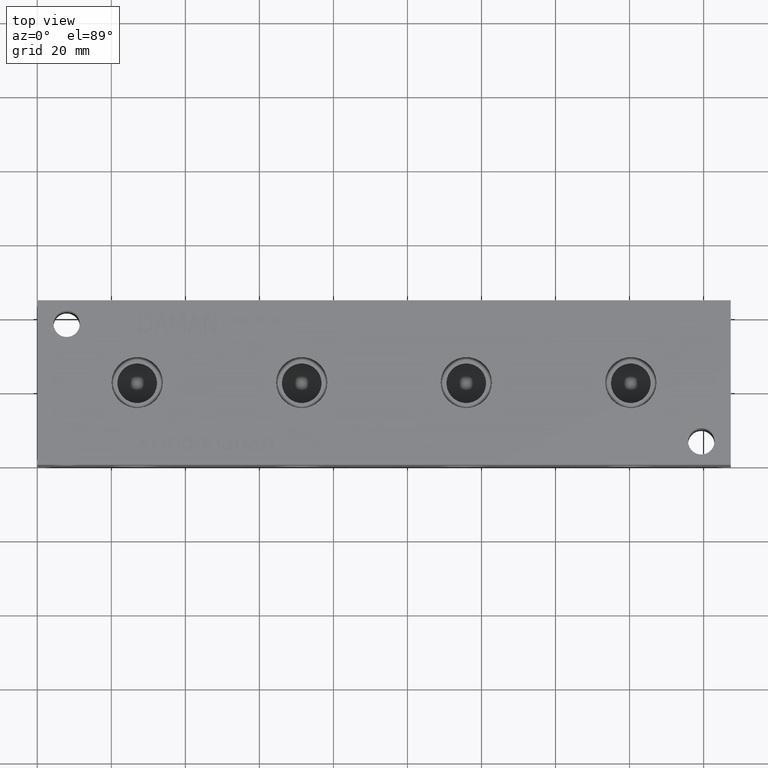
[diagram: clean part render]
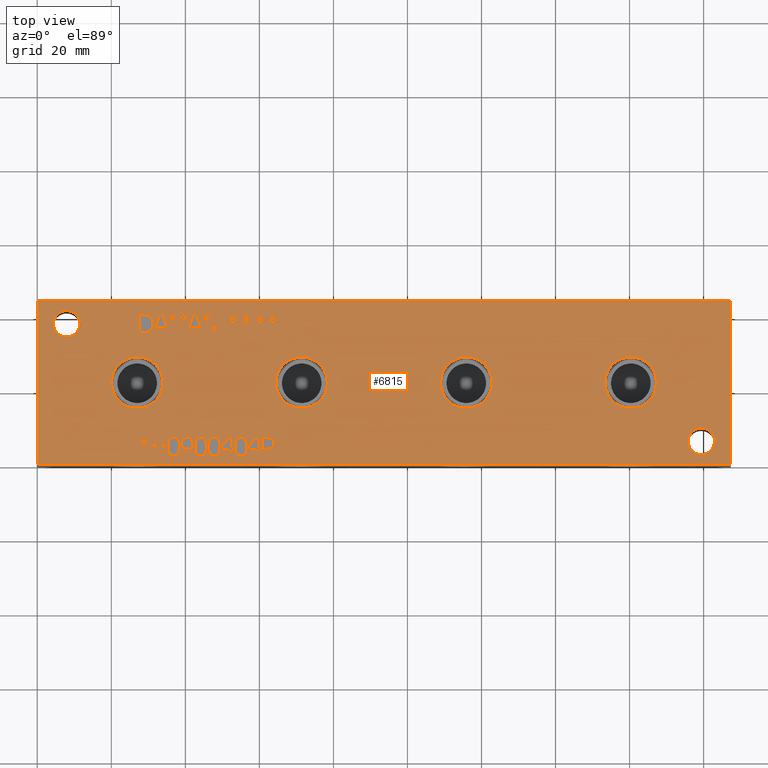
[diagram: same view with one face highlighted and labeled with its STEP entity id]
A machine part, top view. The second image highlights one B-rep face of the part: STEP entity #6815.
In plain terms, the highlighted planar face has unit normal (0, 0, 1).
Its self-contained STEP definition (entity closure, byte-faithful):
#53=CIRCLE('',#7102,6.9342);
#54=CIRCLE('',#7103,6.9342);
#55=CIRCLE('',#7104,6.9342);
#56=CIRCLE('',#7105,6.9342);
#57=CIRCLE('',#7106,6.9342);
#58=CIRCLE('',#7107,6.9342);
#59=CIRCLE('',#7108,6.9342);
#60=CIRCLE('',#7109,6.9342);
#61=CIRCLE('',#7110,3.5687);
#62=CIRCLE('',#7111,3.5687);
#63=CIRCLE('',#7112,3.5687);
#64=CIRCLE('',#7113,3.5687);
#123=FACE_BOUND('',#919,.T.);
#124=FACE_BOUND('',#920,.T.);
#125=FACE_BOUND('',#921,.T.);
#126=FACE_BOUND('',#922,.T.);
#127=FACE_BOUND('',#923,.T.);
#128=FACE_BOUND('',#924,.T.);
#129=FACE_BOUND('',#925,.T.);
#130=FACE_BOUND('',#926,.T.);
#131=FACE_BOUND('',#927,.T.);
#132=FACE_BOUND('',#928,.T.);
#133=FACE_BOUND('',#929,.T.);
#134=FACE_BOUND('',#930,.T.);
#135=FACE_BOUND('',#931,.T.);
#136=FACE_BOUND('',#932,.T.);
#137=FACE_BOUND('',#933,.T.);
#138=FACE_BOUND('',#934,.T.);
#139=FACE_BOUND('',#935,.T.);
#140=FACE_BOUND('',#936,.T.);
#141=FACE_BOUND('',#937,.T.);
#142=FACE_BOUND('',#938,.T.);
#143=FACE_BOUND('',#939,.T.);
#144=FACE_BOUND('',#940,.T.);
#145=FACE_BOUND('',#941,.T.);
#146=FACE_BOUND('',#942,.T.);
#147=FACE_BOUND('',#943,.T.);
#251=PLANE('',#7101);
#563=FACE_OUTER_BOUND('',#918,.T.);
#918=EDGE_LOOP('',(#5074,#5075,#5076,#5077));
#919=EDGE_LOOP('',(#5078,#5079,#5080,#5081,#5082,#5083,#5084,#5085,#5086));
#920=EDGE_LOOP('',(#5087,#5088,#5089,#5090,#5091,#5092,#5093,#5094,#5095,
#5096,#5097));
#921=EDGE_LOOP('',(#5098,#5099,#5100,#5101));
#922=EDGE_LOOP('',(#5102,#5103,#5104,#5105,#5106,#5107,#5108,#5109,#5110,
#5111,#5112));
#923=EDGE_LOOP('',(#5113,#5114,#5115,#5116));
#924=EDGE_LOOP('',(#5117,#5118,#5119,#5120));
#925=EDGE_LOOP('',(#5121,#5122,#5123,#5124,#5125,#5126,#5127,#5128,#5129,
#5130,#5131,#5132,#5133,#5134));
#926=EDGE_LOOP('',(#5135,#5136,#5137,#5138));
#927=EDGE_LOOP('',(#5139,#5140,#5141,#5142,#5143,#5144,#5145,#5146,#5147,
#5148,#5149,#5150,#5151,#5152,#5153,#5154,#5155,#5156));
#928=EDGE_LOOP('',(#5157,#5158,#5159,#5160,#5161,#5162,#5163,#5164,#5165,
#5166,#5167,#5168));
#929=EDGE_LOOP('',(#5169,#5170));
#930=EDGE_LOOP('',(#5171,#5172));
#931=EDGE_LOOP('',(#5173,#5174));
#932=EDGE_LOOP('',(#5175,#5176));
#933=EDGE_LOOP('',(#5177,#5178));
#934=EDGE_LOOP('',(#5179,#5180));
#935=EDGE_LOOP('',(#5181,#5182,#5183,#5184,#5185,#5186,#5187,#5188,#5189,
#5190,#5191,#5192,#5193,#5194,#5195,#5196,#5197,#5198));
#936=EDGE_LOOP('',(#5199,#5200,#5201,#5202,#5203,#5204,#5205,#5206,#5207,
#5208,#5209,#5210,#5211,#5212,#5213,#5214,#5215,#5216));
#937=EDGE_LOOP('',(#5217,#5218,#5219,#5220,#5221,#5222,#5223,#5224,#5225,
#5226));
#938=EDGE_LOOP('',(#5227,#5228,#5229,#5230,#5231,#5232,#5233,#5234));
#939=EDGE_LOOP('',(#5235,#5236,#5237,#5238,#5239,#5240,#5241));
#940=EDGE_LOOP('',(#5242,#5243,#5244,#5245,#5246,#5247,#5248,#5249));
#941=EDGE_LOOP('',(#5250,#5251,#5252,#5253,#5254,#5255,#5256,#5257,#5258,
#5259,#5260,#5261,#5262));
#942=EDGE_LOOP('',(#5263,#5264,#5265,#5266,#5267,#5268,#5269,#5270,#5271,
#5272,#5273,#5274,#5275,#5276,#5277,#5278,#5279,#5280));
#943=EDGE_LOOP('',(#5281,#5282,#5283,#5284,#5285,#5286,#5287,#5288,#5289,
#5290,#5291,#5292,#5293,#5294,#5295,#5296,#5297,#5298));
#1178=LINE('',#8876,#1877);
#1181=LINE('',#8882,#1880);
#1184=LINE('',#8888,#1883);
#1187=LINE('',#8894,#1886);
#1190=LINE('',#8900,#1889);
#1203=LINE('',#8961,#1902);
#1207=LINE('',#8969,#1906);
#1210=LINE('',#8975,#1909);
#1213=LINE('',#8981,#1912);
#1216=LINE('',#8987,#1915);
#1219=LINE('',#8993,#1918);
#1222=LINE('',#8999,#1921);
#1225=LINE('',#9005,#1924);
#1228=LINE('',#9011,#1927);
#1231=LINE('',#9017,#1930);
#1234=LINE('',#9022,#1933);
#1257=LINE('',#9275,#1956);
#1261=LINE('',#9283,#1960);
#1264=LINE('',#9289,#1963);
#1267=LINE('',#9295,#1966);
#1270=LINE('',#9301,#1969);
#1273=LINE('',#9307,#1972);
#1276=LINE('',#9313,#1975);
#1279=LINE('',#9319,#1978);
#1282=LINE('',#9325,#1981);
#1285=LINE('',#9331,#1984);
#1288=LINE('',#9336,#1987);
#1327=LINE('',#10030,#2026);
#1330=LINE('',#10036,#2029);
#1351=LINE('',#10403,#2050);
#1355=LINE('',#10411,#2054);
#1358=LINE('',#10417,#2057);
#1361=LINE('',#10423,#2060);
#1364=LINE('',#10429,#2063);
#1367=LINE('',#10435,#2066);
#1370=LINE('',#10441,#2069);
#1373=LINE('',#10447,#2072);
#1376=LINE('',#10453,#2075);
#1379=LINE('',#10459,#2078);
#1382=LINE('',#10465,#2081);
#1385=LINE('',#10471,#2084);
#1388=LINE('',#10477,#2087);
#1391=LINE('',#10483,#2090);
#1394=LINE('',#10489,#2093);
#1397=LINE('',#10495,#2096);
#1400=LINE('',#10501,#2099);
#1403=LINE('',#10506,#2102);
#1405=LINE('',#10512,#2104);
#1409=LINE('',#10520,#2108);
#1412=LINE('',#10526,#2111);
#1415=LINE('',#10532,#2114);
#1418=LINE('',#10538,#2117);
#1421=LINE('',#10544,#2120);
#1424=LINE('',#10550,#2123);
#1427=LINE('',#10556,#2126);
#1430=LINE('',#10562,#2129);
#1433=LINE('',#10568,#2132);
#1436=LINE('',#10574,#2135);
#1439=LINE('',#10579,#2138);
#1441=LINE('',#10585,#2140);
#1442=LINE('',#10587,#2141);
#1443=LINE('',#10589,#2142);
#1444=LINE('',#10590,#2143);
#1445=LINE('',#10617,#2144);
#1446=LINE('',#10619,#2145);
#1447=LINE('',#10621,#2146);
#1448=LINE('',#10623,#2147);
#1449=LINE('',#10625,#2148);
#1450=LINE('',#10627,#2149);
#1451=LINE('',#10629,#2150);
#1452=LINE('',#10631,#2151);
#1453=LINE('',#10633,#2152);
#1454=LINE('',#10635,#2153);
#1455=LINE('',#10637,#2154);
#1456=LINE('',#10639,#2155);
#1457=LINE('',#10641,#2156);
#1458=LINE('',#10643,#2157);
#1459=LINE('',#10645,#2158);
#1460=LINE('',#10647,#2159);
#1461=LINE('',#10649,#2160);
#1462=LINE('',#10650,#2161);
#1463=LINE('',#10653,#2162);
#1464=LINE('',#10655,#2163);
#1465=LINE('',#10657,#2164);
#1466=LINE('',#10659,#2165);
#1467=LINE('',#10661,#2166);
#1468=LINE('',#10663,#2167);
#1469=LINE('',#10665,#2168);
#1470=LINE('',#10667,#2169);
#1471=LINE('',#10669,#2170);
#1472=LINE('',#10671,#2171);
#1473=LINE('',#10673,#2172);
#1474=LINE('',#10675,#2173);
#1475=LINE('',#10677,#2174);
#1476=LINE('',#10679,#2175);
#1477=LINE('',#10681,#2176);
#1478=LINE('',#10683,#2177);
#1479=LINE('',#10685,#2178);
#1480=LINE('',#10686,#2179);
#1481=LINE('',#10689,#2180);
#1482=LINE('',#10691,#2181);
#1483=LINE('',#10693,#2182);
#1484=LINE('',#10695,#2183);
#1485=LINE('',#10697,#2184);
#1486=LINE('',#10699,#2185);
#1487=LINE('',#10701,#2186);
#1488=LINE('',#10703,#2187);
#1489=LINE('',#10705,#2188);
#1490=LINE('',#10706,#2189);
#1491=LINE('',#10709,#2190);
#1492=LINE('',#10711,#2191);
#1493=LINE('',#10713,#2192);
#1494=LINE('',#10715,#2193);
#1495=LINE('',#10717,#2194);
#1496=LINE('',#10719,#2195);
#1497=LINE('',#10721,#2196);
#1498=LINE('',#10722,#2197);
#1499=LINE('',#10740,#2198);
#1500=LINE('',#10742,#2199);
#1501=LINE('',#10744,#2200);
#1502=LINE('',#10751,#2201);
#1503=LINE('',#10753,#2202);
#1504=LINE('',#10755,#2203);
#1505=LINE('',#10757,#2204);
#1506=LINE('',#10759,#2205);
#1507=LINE('',#10761,#2206);
#1508=LINE('',#10763,#2207);
#1509=LINE('',#10764,#2208);
#1510=LINE('',#10767,#2209);
#1511=LINE('',#10769,#2210);
#1512=LINE('',#10771,#2211);
#1513=LINE('',#10773,#2212);
#1514=LINE('',#10775,#2213);
#1515=LINE('',#10777,#2214);
#1516=LINE('',#10779,#2215);
#1517=LINE('',#10781,#2216);
#1518=LINE('',#10783,#2217);
#1519=LINE('',#10785,#2218);
#1520=LINE('',#10787,#2219);
#1521=LINE('',#10789,#2220);
#1522=LINE('',#10790,#2221);
#1523=LINE('',#10793,#2222);
#1524=LINE('',#10795,#2223);
#1525=LINE('',#10797,#2224);
#1526=LINE('',#10799,#2225);
#1527=LINE('',#10801,#2226);
#1528=LINE('',#10803,#2227);
#1529=LINE('',#10805,#2228);
#1530=LINE('',#10807,#2229);
#1531=LINE('',#10809,#2230);
#1532=LINE('',#10811,#2231);
#1533=LINE('',#10813,#2232);
#1534=LINE('',#10815,#2233);
#1535=LINE('',#10817,#2234);
#1536=LINE('',#10819,#2235);
#1537=LINE('',#10821,#2236);
#1538=LINE('',#10823,#2237);
#1539=LINE('',#10825,#2238);
#1540=LINE('',#10826,#2239);
#1541=LINE('',#10829,#2240);
#1542=LINE('',#10831,#2241);
#1543=LINE('',#10833,#2242);
#1544=LINE('',#10835,#2243);
#1545=LINE('',#10837,#2244);
#1546=LINE('',#10839,#2245);
#1547=LINE('',#10841,#2246);
#1548=LINE('',#10843,#2247);
#1549=LINE('',#10845,#2248);
#1550=LINE('',#10847,#2249);
#1551=LINE('',#10849,#2250);
#1552=LINE('',#10851,#2251);
#1553=LINE('',#10853,#2252);
#1554=LINE('',#10855,#2253);
#1555=LINE('',#10857,#2254);
#1556=LINE('',#10859,#2255);
#1557=LINE('',#10861,#2256);
#1558=LINE('',#10862,#2257);
#1877=VECTOR('',#7387,10.);
#1880=VECTOR('',#7392,10.);
#1883=VECTOR('',#7397,10.);
#1886=VECTOR('',#7402,10.);
#1889=VECTOR('',#7407,10.);
#1902=VECTOR('',#7430,10.);
#1906=VECTOR('',#7436,10.);
#1909=VECTOR('',#7441,10.);
#1912=VECTOR('',#7446,10.);
#1915=VECTOR('',#7451,10.);
#1918=VECTOR('',#7456,10.);
#1921=VECTOR('',#7461,10.);
#1924=VECTOR('',#7466,10.);
#1927=VECTOR('',#7471,10.);
#1930=VECTOR('',#7476,10.);
#1933=VECTOR('',#7481,10.);
#1956=VECTOR('',#7516,10.);
#1960=VECTOR('',#7522,10.);
#1963=VECTOR('',#7527,10.);
#1966=VECTOR('',#7532,10.);
#1969=VECTOR('',#7537,10.);
#1972=VECTOR('',#7542,10.);
#1975=VECTOR('',#7547,10.);
#1978=VECTOR('',#7552,10.);
#1981=VECTOR('',#7557,10.);
#1984=VECTOR('',#7562,10.);
#1987=VECTOR('',#7567,10.);
#2026=VECTOR('',#7614,10.);
#2029=VECTOR('',#7619,10.);
#2050=VECTOR('',#7646,10.);
#2054=VECTOR('',#7652,10.);
#2057=VECTOR('',#7657,10.);
#2060=VECTOR('',#7662,10.);
#2063=VECTOR('',#7667,10.);
#2066=VECTOR('',#7672,10.);
#2069=VECTOR('',#7677,10.);
#2072=VECTOR('',#7682,10.);
#2075=VECTOR('',#7687,10.);
#2078=VECTOR('',#7692,10.);
#2081=VECTOR('',#7697,10.);
#2084=VECTOR('',#7702,10.);
#2087=VECTOR('',#7707,10.);
#2090=VECTOR('',#7712,10.);
#2093=VECTOR('',#7717,10.);
#2096=VECTOR('',#7722,10.);
#2099=VECTOR('',#7727,10.);
#2102=VECTOR('',#7732,10.);
#2104=VECTOR('',#7738,10.);
#2108=VECTOR('',#7744,10.);
#2111=VECTOR('',#7749,10.);
#2114=VECTOR('',#7754,10.);
#2117=VECTOR('',#7759,10.);
#2120=VECTOR('',#7764,10.);
#2123=VECTOR('',#7769,10.);
#2126=VECTOR('',#7774,10.);
#2129=VECTOR('',#7779,10.);
#2132=VECTOR('',#7784,10.);
#2135=VECTOR('',#7789,10.);
#2138=VECTOR('',#7794,10.);
#2140=VECTOR('',#7800,10.);
#2141=VECTOR('',#7801,10.);
#2142=VECTOR('',#7802,10.);
#2143=VECTOR('',#7803,10.);
#2144=VECTOR('',#7828,10.);
#2145=VECTOR('',#7829,10.);
#2146=VECTOR('',#7830,10.);
#2147=VECTOR('',#7831,10.);
#2148=VECTOR('',#7832,10.);
#2149=VECTOR('',#7833,10.);
#2150=VECTOR('',#7834,10.);
#2151=VECTOR('',#7835,10.);
#2152=VECTOR('',#7836,10.);
#2153=VECTOR('',#7837,10.);
#2154=VECTOR('',#7838,10.);
#2155=VECTOR('',#7839,10.);
#2156=VECTOR('',#7840,10.);
#2157=VECTOR('',#7841,10.);
#2158=VECTOR('',#7842,10.);
#2159=VECTOR('',#7843,10.);
#2160=VECTOR('',#7844,10.);
#2161=VECTOR('',#7845,10.);
#2162=VECTOR('',#7846,10.);
#2163=VECTOR('',#7847,10.);
#2164=VECTOR('',#7848,10.);
#2165=VECTOR('',#7849,10.);
#2166=VECTOR('',#7850,10.);
#2167=VECTOR('',#7851,10.);
#2168=VECTOR('',#7852,10.);
#2169=VECTOR('',#7853,10.);
#2170=VECTOR('',#7854,10.);
#2171=VECTOR('',#7855,10.);
#2172=VECTOR('',#7856,10.);
#2173=VECTOR('',#7857,10.);
#2174=VECTOR('',#7858,10.);
#2175=VECTOR('',#7859,10.);
#2176=VECTOR('',#7860,10.);
#2177=VECTOR('',#7861,10.);
#2178=VECTOR('',#7862,10.);
#2179=VECTOR('',#7863,10.);
#2180=VECTOR('',#7864,10.);
#2181=VECTOR('',#7865,10.);
#2182=VECTOR('',#7866,10.);
#2183=VECTOR('',#7867,10.);
#2184=VECTOR('',#7868,10.);
#2185=VECTOR('',#7869,10.);
#2186=VECTOR('',#7870,10.);
#2187=VECTOR('',#7871,10.);
#2188=VECTOR('',#7872,10.);
#2189=VECTOR('',#7873,10.);
#2190=VECTOR('',#7874,10.);
#2191=VECTOR('',#7875,10.);
#2192=VECTOR('',#7876,10.);
#2193=VECTOR('',#7877,10.);
#2194=VECTOR('',#7878,10.);
#2195=VECTOR('',#7879,10.);
#2196=VECTOR('',#7880,10.);
#2197=VECTOR('',#7881,10.);
#2198=VECTOR('',#7882,10.);
#2199=VECTOR('',#7883,10.);
#2200=VECTOR('',#7884,10.);
#2201=VECTOR('',#7885,10.);
#2202=VECTOR('',#7886,10.);
#2203=VECTOR('',#7887,10.);
#2204=VECTOR('',#7888,10.);
#2205=VECTOR('',#7889,10.);
#2206=VECTOR('',#7890,10.);
#2207=VECTOR('',#7891,10.);
#2208=VECTOR('',#7892,10.);
#2209=VECTOR('',#7893,10.);
#2210=VECTOR('',#7894,10.);
#2211=VECTOR('',#7895,10.);
#2212=VECTOR('',#7896,10.);
#2213=VECTOR('',#7897,10.);
#2214=VECTOR('',#7898,10.);
#2215=VECTOR('',#7899,10.);
#2216=VECTOR('',#7900,10.);
#2217=VECTOR('',#7901,10.);
#2218=VECTOR('',#7902,10.);
#2219=VECTOR('',#7903,10.);
#2220=VECTOR('',#7904,10.);
#2221=VECTOR('',#7905,10.);
#2222=VECTOR('',#7906,10.);
#2223=VECTOR('',#7907,10.);
#2224=VECTOR('',#7908,10.);
#2225=VECTOR('',#7909,10.);
#2226=VECTOR('',#7910,10.);
#2227=VECTOR('',#7911,10.);
#2228=VECTOR('',#7912,10.);
#2229=VECTOR('',#7913,10.);
#2230=VECTOR('',#7914,10.);
#2231=VECTOR('',#7915,10.);
#2232=VECTOR('',#7916,10.);
#2233=VECTOR('',#7917,10.);
#2234=VECTOR('',#7918,10.);
#2235=VECTOR('',#7919,10.);
#2236=VECTOR('',#7920,10.);
#2237=VECTOR('',#7921,10.);
#2238=VECTOR('',#7922,10.);
#2239=VECTOR('',#7923,10.);
#2240=VECTOR('',#7924,10.);
#2241=VECTOR('',#7925,10.);
#2242=VECTOR('',#7926,10.);
#2243=VECTOR('',#7927,10.);
#2244=VECTOR('',#7928,10.);
#2245=VECTOR('',#7929,10.);
#2246=VECTOR('',#7930,10.);
#2247=VECTOR('',#7931,10.);
#2248=VECTOR('',#7932,10.);
#2249=VECTOR('',#7933,10.);
#2250=VECTOR('',#7934,10.);
#2251=VECTOR('',#7935,10.);
#2252=VECTOR('',#7936,10.);
#2253=VECTOR('',#7937,10.);
#2254=VECTOR('',#7938,10.);
#2255=VECTOR('',#7939,10.);
#2256=VECTOR('',#7940,10.);
#2257=VECTOR('',#7941,10.);
#2568=B_SPLINE_CURVE_WITH_KNOTS('',2,(#8843,#8844,#8845,#8846),
 .UNSPECIFIED.,.F.,.F.,(3,1,3),(0.,1.,2.),.UNSPECIFIED.);
#2570=B_SPLINE_CURVE_WITH_KNOTS('',2,(#8864,#8865,#8866,#8867),
 .UNSPECIFIED.,.F.,.F.,(3,1,3),(0.,1.,2.),.UNSPECIFIED.);
#2572=B_SPLINE_CURVE_WITH_KNOTS('',2,(#8913,#8914,#8915,#8916),
 .UNSPECIFIED.,.F.,.F.,(3,1,3),(0.,1.,2.),.UNSPECIFIED.);
#2574=B_SPLINE_CURVE_WITH_KNOTS('',2,(#8931,#8932,#8933,#8934),
 .UNSPECIFIED.,.F.,.F.,(3,1,3),(0.,1.,2.),.UNSPECIFIED.);
#2592=B_SPLINE_CURVE_WITH_KNOTS('',2,(#9187,#9188,#9189,#9190),
 .UNSPECIFIED.,.F.,.F.,(3,1,3),(0.,1.,2.),.UNSPECIFIED.);
#2594=B_SPLINE_CURVE_WITH_KNOTS('',2,(#9208,#9209,#9210,#9211),
 .UNSPECIFIED.,.F.,.F.,(3,1,3),(0.,1.,2.),.UNSPECIFIED.);
#2596=B_SPLINE_CURVE_WITH_KNOTS('',2,(#9227,#9228,#9229,#9230),
 .UNSPECIFIED.,.F.,.F.,(3,1,3),(0.,1.,2.),.UNSPECIFIED.);
#2598=B_SPLINE_CURVE_WITH_KNOTS('',2,(#9245,#9246,#9247,#9248),
 .UNSPECIFIED.,.F.,.F.,(3,1,3),(0.,1.,2.),.UNSPECIFIED.);
#2616=B_SPLINE_CURVE_WITH_KNOTS('',2,(#9501,#9502,#9503,#9504),
 .UNSPECIFIED.,.F.,.F.,(3,1,3),(0.,1.,2.),.UNSPECIFIED.);
#2618=B_SPLINE_CURVE_WITH_KNOTS('',2,(#9522,#9523,#9524,#9525),
 .UNSPECIFIED.,.F.,.F.,(3,1,3),(0.,1.,2.),.UNSPECIFIED.);
#2620=B_SPLINE_CURVE_WITH_KNOTS('',2,(#9541,#9542,#9543,#9544),
 .UNSPECIFIED.,.F.,.F.,(3,1,3),(0.,1.,2.),.UNSPECIFIED.);
#2622=B_SPLINE_CURVE_WITH_KNOTS('',2,(#9559,#9560,#9561,#9562),
 .UNSPECIFIED.,.F.,.F.,(3,1,3),(0.,1.,2.),.UNSPECIFIED.);
#2640=B_SPLINE_CURVE_WITH_KNOTS('',2,(#9730,#9731,#9732,#9733),
 .UNSPECIFIED.,.F.,.F.,(3,1,3),(0.,1.,2.),.UNSPECIFIED.);
#2642=B_SPLINE_CURVE_WITH_KNOTS('',2,(#9751,#9752,#9753,#9754),
 .UNSPECIFIED.,.F.,.F.,(3,1,3),(0.,1.,2.),.UNSPECIFIED.);
#2644=B_SPLINE_CURVE_WITH_KNOTS('',2,(#9770,#9771,#9772,#9773),
 .UNSPECIFIED.,.F.,.F.,(3,1,3),(0.,1.,2.),.UNSPECIFIED.);
#2646=B_SPLINE_CURVE_WITH_KNOTS('',2,(#9788,#9789,#9790,#9791),
 .UNSPECIFIED.,.F.,.F.,(3,1,3),(0.,1.,2.),.UNSPECIFIED.);
#2662=B_SPLINE_CURVE_WITH_KNOTS('',2,(#9940,#9941,#9942,#9943),
 .UNSPECIFIED.,.F.,.F.,(3,1,3),(0.,1.,2.),.UNSPECIFIED.);
#2664=B_SPLINE_CURVE_WITH_KNOTS('',2,(#9961,#9962,#9963,#9964),
 .UNSPECIFIED.,.F.,.F.,(3,1,3),(0.,1.,2.),.UNSPECIFIED.);
#2666=B_SPLINE_CURVE_WITH_KNOTS('',2,(#9980,#9981,#9982,#9983),
 .UNSPECIFIED.,.F.,.F.,(3,1,3),(0.,1.,2.),.UNSPECIFIED.);
#2668=B_SPLINE_CURVE_WITH_KNOTS('',2,(#9999,#10000,#10001,#10002),
 .UNSPECIFIED.,.F.,.F.,(3,1,3),(0.,1.,2.),.UNSPECIFIED.);
#2670=B_SPLINE_CURVE_WITH_KNOTS('',2,(#10018,#10019,#10020,#10021),
 .UNSPECIFIED.,.F.,.F.,(3,1,3),(0.,1.,2.),.UNSPECIFIED.);
#2672=B_SPLINE_CURVE_WITH_KNOTS('',2,(#10049,#10050,#10051,#10052),
 .UNSPECIFIED.,.F.,.F.,(3,1,3),(0.,1.,2.),.UNSPECIFIED.);
#2674=B_SPLINE_CURVE_WITH_KNOTS('',2,(#10068,#10069,#10070,#10071),
 .UNSPECIFIED.,.F.,.F.,(3,1,3),(0.,1.,2.),.UNSPECIFIED.);
#2676=B_SPLINE_CURVE_WITH_KNOTS('',2,(#10087,#10088,#10089,#10090),
 .UNSPECIFIED.,.F.,.F.,(3,1,3),(0.,1.,2.),.UNSPECIFIED.);
#2678=B_SPLINE_CURVE_WITH_KNOTS('',2,(#10106,#10107,#10108,#10109),
 .UNSPECIFIED.,.F.,.F.,(3,1,3),(0.,1.,2.),.UNSPECIFIED.);
#2680=B_SPLINE_CURVE_WITH_KNOTS('',2,(#10125,#10126,#10127,#10128),
 .UNSPECIFIED.,.F.,.F.,(3,1,3),(0.,1.,2.),.UNSPECIFIED.);
#2682=B_SPLINE_CURVE_WITH_KNOTS('',2,(#10144,#10145,#10146,#10147),
 .UNSPECIFIED.,.F.,.F.,(3,1,3),(0.,1.,2.),.UNSPECIFIED.);
#2684=B_SPLINE_CURVE_WITH_KNOTS('',2,(#10162,#10163,#10164,#10165),
 .UNSPECIFIED.,.F.,.F.,(3,1,3),(0.,1.,2.),.UNSPECIFIED.);
#2702=B_SPLINE_CURVE_WITH_KNOTS('',2,(#10333,#10334,#10335,#10336),
 .UNSPECIFIED.,.F.,.F.,(3,1,3),(0.,1.,2.),.UNSPECIFIED.);
#2704=B_SPLINE_CURVE_WITH_KNOTS('',2,(#10354,#10355,#10356,#10357),
 .UNSPECIFIED.,.F.,.F.,(3,1,3),(0.,1.,2.),.UNSPECIFIED.);
#2706=B_SPLINE_CURVE_WITH_KNOTS('',2,(#10373,#10374,#10375,#10376),
 .UNSPECIFIED.,.F.,.F.,(3,1,3),(0.,1.,2.),.UNSPECIFIED.);
#2708=B_SPLINE_CURVE_WITH_KNOTS('',2,(#10391,#10392,#10393,#10394),
 .UNSPECIFIED.,.F.,.F.,(3,1,3),(0.,1.,2.),.UNSPECIFIED.);
#2710=B_SPLINE_CURVE_WITH_KNOTS('',2,(#10725,#10726,#10727,#10728),
 .UNSPECIFIED.,.F.,.F.,(3,1,3),(0.,1.,2.),.UNSPECIFIED.);
#2711=B_SPLINE_CURVE_WITH_KNOTS('',2,(#10730,#10731,#10732,#10733),
 .UNSPECIFIED.,.F.,.F.,(3,1,3),(0.,1.,2.),.UNSPECIFIED.);
#2712=B_SPLINE_CURVE_WITH_KNOTS('',2,(#10735,#10736,#10737,#10738),
 .UNSPECIFIED.,.F.,.F.,(3,1,3),(0.,1.,2.),.UNSPECIFIED.);
#2713=B_SPLINE_CURVE_WITH_KNOTS('',2,(#10745,#10746,#10747,#10748),
 .UNSPECIFIED.,.F.,.F.,(3,1,3),(0.,1.,2.),.UNSPECIFIED.);
#2764=VERTEX_POINT('',#8841);
#2765=VERTEX_POINT('',#8842);
#2768=VERTEX_POINT('',#8863);
#2770=VERTEX_POINT('',#8875);
#2772=VERTEX_POINT('',#8881);
#2774=VERTEX_POINT('',#8887);
#2776=VERTEX_POINT('',#8893);
#2778=VERTEX_POINT('',#8899);
#2780=VERTEX_POINT('',#8912);
#2788=VERTEX_POINT('',#8959);
#2789=VERTEX_POINT('',#8960);
#2792=VERTEX_POINT('',#8968);
#2794=VERTEX_POINT('',#8974);
#2796=VERTEX_POINT('',#8980);
#2798=VERTEX_POINT('',#8986);
#2800=VERTEX_POINT('',#8992);
#2802=VERTEX_POINT('',#8998);
#2804=VERTEX_POINT('',#9004);
#2806=VERTEX_POINT('',#9010);
#2808=VERTEX_POINT('',#9016);
#2826=VERTEX_POINT('',#9185);
#2827=VERTEX_POINT('',#9186);
#2830=VERTEX_POINT('',#9207);
#2832=VERTEX_POINT('',#9226);
#2840=VERTEX_POINT('',#9273);
#2841=VERTEX_POINT('',#9274);
#2844=VERTEX_POINT('',#9282);
#2846=VERTEX_POINT('',#9288);
#2848=VERTEX_POINT('',#9294);
#2850=VERTEX_POINT('',#9300);
#2852=VERTEX_POINT('',#9306);
#2854=VERTEX_POINT('',#9312);
#2856=VERTEX_POINT('',#9318);
#2858=VERTEX_POINT('',#9324);
#2860=VERTEX_POINT('',#9330);
#2878=VERTEX_POINT('',#9499);
#2879=VERTEX_POINT('',#9500);
#2882=VERTEX_POINT('',#9521);
#2884=VERTEX_POINT('',#9540);
#2902=VERTEX_POINT('',#9728);
#2903=VERTEX_POINT('',#9729);
#2906=VERTEX_POINT('',#9750);
#2908=VERTEX_POINT('',#9769);
#2924=VERTEX_POINT('',#9938);
#2925=VERTEX_POINT('',#9939);
#2928=VERTEX_POINT('',#9960);
#2930=VERTEX_POINT('',#9979);
#2932=VERTEX_POINT('',#9998);
#2934=VERTEX_POINT('',#10017);
#2936=VERTEX_POINT('',#10029);
#2938=VERTEX_POINT('',#10035);
#2940=VERTEX_POINT('',#10048);
#2942=VERTEX_POINT('',#10067);
#2944=VERTEX_POINT('',#10086);
#2946=VERTEX_POINT('',#10105);
#2948=VERTEX_POINT('',#10124);
#2950=VERTEX_POINT('',#10143);
#2968=VERTEX_POINT('',#10331);
#2969=VERTEX_POINT('',#10332);
#2972=VERTEX_POINT('',#10353);
#2974=VERTEX_POINT('',#10372);
#2976=VERTEX_POINT('',#10401);
#2977=VERTEX_POINT('',#10402);
#2980=VERTEX_POINT('',#10410);
#2982=VERTEX_POINT('',#10416);
#2984=VERTEX_POINT('',#10422);
#2986=VERTEX_POINT('',#10428);
#2988=VERTEX_POINT('',#10434);
#2990=VERTEX_POINT('',#10440);
#2992=VERTEX_POINT('',#10446);
#2994=VERTEX_POINT('',#10452);
#2996=VERTEX_POINT('',#10458);
#2998=VERTEX_POINT('',#10464);
#3000=VERTEX_POINT('',#10470);
#3002=VERTEX_POINT('',#10476);
#3004=VERTEX_POINT('',#10482);
#3006=VERTEX_POINT('',#10488);
#3008=VERTEX_POINT('',#10494);
#3010=VERTEX_POINT('',#10500);
#3012=VERTEX_POINT('',#10510);
#3013=VERTEX_POINT('',#10511);
#3016=VERTEX_POINT('',#10519);
#3018=VERTEX_POINT('',#10525);
#3020=VERTEX_POINT('',#10531);
#3022=VERTEX_POINT('',#10537);
#3024=VERTEX_POINT('',#10543);
#3026=VERTEX_POINT('',#10549);
#3028=VERTEX_POINT('',#10555);
#3030=VERTEX_POINT('',#10561);
#3032=VERTEX_POINT('',#10567);
#3034=VERTEX_POINT('',#10573);
#3036=VERTEX_POINT('',#10583);
#3037=VERTEX_POINT('',#10584);
#3038=VERTEX_POINT('',#10586);
#3039=VERTEX_POINT('',#10588);
#3040=VERTEX_POINT('',#10591);
#3041=VERTEX_POINT('',#10592);
#3042=VERTEX_POINT('',#10595);
#3043=VERTEX_POINT('',#10596);
#3044=VERTEX_POINT('',#10599);
#3045=VERTEX_POINT('',#10600);
#3046=VERTEX_POINT('',#10603);
#3047=VERTEX_POINT('',#10604);
#3048=VERTEX_POINT('',#10607);
#3049=VERTEX_POINT('',#10608);
#3050=VERTEX_POINT('',#10611);
#3051=VERTEX_POINT('',#10612);
#3052=VERTEX_POINT('',#10615);
#3053=VERTEX_POINT('',#10616);
#3054=VERTEX_POINT('',#10618);
#3055=VERTEX_POINT('',#10620);
#3056=VERTEX_POINT('',#10622);
#3057=VERTEX_POINT('',#10624);
#3058=VERTEX_POINT('',#10626);
#3059=VERTEX_POINT('',#10628);
#3060=VERTEX_POINT('',#10630);
#3061=VERTEX_POINT('',#10632);
#3062=VERTEX_POINT('',#10634);
#3063=VERTEX_POINT('',#10636);
#3064=VERTEX_POINT('',#10638);
#3065=VERTEX_POINT('',#10640);
#3066=VERTEX_POINT('',#10642);
#3067=VERTEX_POINT('',#10644);
#3068=VERTEX_POINT('',#10646);
#3069=VERTEX_POINT('',#10648);
#3070=VERTEX_POINT('',#10651);
#3071=VERTEX_POINT('',#10652);
#3072=VERTEX_POINT('',#10654);
#3073=VERTEX_POINT('',#10656);
#3074=VERTEX_POINT('',#10658);
#3075=VERTEX_POINT('',#10660);
#3076=VERTEX_POINT('',#10662);
#3077=VERTEX_POINT('',#10664);
#3078=VERTEX_POINT('',#10666);
#3079=VERTEX_POINT('',#10668);
#3080=VERTEX_POINT('',#10670);
#3081=VERTEX_POINT('',#10672);
#3082=VERTEX_POINT('',#10674);
#3083=VERTEX_POINT('',#10676);
#3084=VERTEX_POINT('',#10678);
#3085=VERTEX_POINT('',#10680);
#3086=VERTEX_POINT('',#10682);
#3087=VERTEX_POINT('',#10684);
#3088=VERTEX_POINT('',#10687);
#3089=VERTEX_POINT('',#10688);
#3090=VERTEX_POINT('',#10690);
#3091=VERTEX_POINT('',#10692);
#3092=VERTEX_POINT('',#10694);
#3093=VERTEX_POINT('',#10696);
#3094=VERTEX_POINT('',#10698);
#3095=VERTEX_POINT('',#10700);
#3096=VERTEX_POINT('',#10702);
#3097=VERTEX_POINT('',#10704);
#3098=VERTEX_POINT('',#10707);
#3099=VERTEX_POINT('',#10708);
#3100=VERTEX_POINT('',#10710);
#3101=VERTEX_POINT('',#10712);
#3102=VERTEX_POINT('',#10714);
#3103=VERTEX_POINT('',#10716);
#3104=VERTEX_POINT('',#10718);
#3105=VERTEX_POINT('',#10720);
#3106=VERTEX_POINT('',#10723);
#3107=VERTEX_POINT('',#10724);
#3108=VERTEX_POINT('',#10729);
#3109=VERTEX_POINT('',#10734);
#3110=VERTEX_POINT('',#10739);
#3111=VERTEX_POINT('',#10741);
#3112=VERTEX_POINT('',#10743);
#3113=VERTEX_POINT('',#10749);
#3114=VERTEX_POINT('',#10750);
#3115=VERTEX_POINT('',#10752);
#3116=VERTEX_POINT('',#10754);
#3117=VERTEX_POINT('',#10756);
#3118=VERTEX_POINT('',#10758);
#3119=VERTEX_POINT('',#10760);
#3120=VERTEX_POINT('',#10762);
#3121=VERTEX_POINT('',#10765);
#3122=VERTEX_POINT('',#10766);
#3123=VERTEX_POINT('',#10768);
#3124=VERTEX_POINT('',#10770);
#3125=VERTEX_POINT('',#10772);
#3126=VERTEX_POINT('',#10774);
#3127=VERTEX_POINT('',#10776);
#3128=VERTEX_POINT('',#10778);
#3129=VERTEX_POINT('',#10780);
#3130=VERTEX_POINT('',#10782);
#3131=VERTEX_POINT('',#10784);
#3132=VERTEX_POINT('',#10786);
#3133=VERTEX_POINT('',#10788);
#3134=VERTEX_POINT('',#10791);
#3135=VERTEX_POINT('',#10792);
#3136=VERTEX_POINT('',#10794);
#3137=VERTEX_POINT('',#10796);
#3138=VERTEX_POINT('',#10798);
#3139=VERTEX_POINT('',#10800);
#3140=VERTEX_POINT('',#10802);
#3141=VERTEX_POINT('',#10804);
#3142=VERTEX_POINT('',#10806);
#3143=VERTEX_POINT('',#10808);
#3144=VERTEX_POINT('',#10810);
#3145=VERTEX_POINT('',#10812);
#3146=VERTEX_POINT('',#10814);
#3147=VERTEX_POINT('',#10816);
#3148=VERTEX_POINT('',#10818);
#3149=VERTEX_POINT('',#10820);
#3150=VERTEX_POINT('',#10822);
#3151=VERTEX_POINT('',#10824);
#3152=VERTEX_POINT('',#10827);
#3153=VERTEX_POINT('',#10828);
#3154=VERTEX_POINT('',#10830);
#3155=VERTEX_POINT('',#10832);
#3156=VERTEX_POINT('',#10834);
#3157=VERTEX_POINT('',#10836);
#3158=VERTEX_POINT('',#10838);
#3159=VERTEX_POINT('',#10840);
#3160=VERTEX_POINT('',#10842);
#3161=VERTEX_POINT('',#10844);
#3162=VERTEX_POINT('',#10846);
#3163=VERTEX_POINT('',#10848);
#3164=VERTEX_POINT('',#10850);
#3165=VERTEX_POINT('',#10852);
#3166=VERTEX_POINT('',#10854);
#3167=VERTEX_POINT('',#10856);
#3168=VERTEX_POINT('',#10858);
#3169=VERTEX_POINT('',#10860);
#3417=EDGE_CURVE('',#2764,#2765,#2568,.T.);
#3421=EDGE_CURVE('',#2768,#2764,#2570,.T.);
#3424=EDGE_CURVE('',#2770,#2768,#1178,.T.);
#3427=EDGE_CURVE('',#2772,#2770,#1181,.T.);
#3430=EDGE_CURVE('',#2774,#2772,#1184,.T.);
#3433=EDGE_CURVE('',#2776,#2774,#1187,.T.);
#3436=EDGE_CURVE('',#2778,#2776,#1190,.T.);
#3439=EDGE_CURVE('',#2780,#2778,#2572,.T.);
#3442=EDGE_CURVE('',#2765,#2780,#2574,.T.);
#3453=EDGE_CURVE('',#2788,#2789,#1203,.T.);
#3457=EDGE_CURVE('',#2792,#2788,#1207,.T.);
#3460=EDGE_CURVE('',#2794,#2792,#1210,.T.);
#3463=EDGE_CURVE('',#2796,#2794,#1213,.T.);
#3466=EDGE_CURVE('',#2798,#2796,#1216,.T.);
#3469=EDGE_CURVE('',#2800,#2798,#1219,.T.);
#3472=EDGE_CURVE('',#2802,#2800,#1222,.T.);
#3475=EDGE_CURVE('',#2804,#2802,#1225,.T.);
#3478=EDGE_CURVE('',#2806,#2804,#1228,.T.);
#3481=EDGE_CURVE('',#2808,#2806,#1231,.T.);
#3484=EDGE_CURVE('',#2789,#2808,#1234,.T.);
#3510=EDGE_CURVE('',#2826,#2827,#2592,.T.);
#3514=EDGE_CURVE('',#2830,#2826,#2594,.T.);
#3517=EDGE_CURVE('',#2832,#2830,#2596,.T.);
#3520=EDGE_CURVE('',#2827,#2832,#2598,.T.);
#3531=EDGE_CURVE('',#2840,#2841,#1257,.T.);
#3535=EDGE_CURVE('',#2844,#2840,#1261,.T.);
#3538=EDGE_CURVE('',#2846,#2844,#1264,.T.);
#3541=EDGE_CURVE('',#2848,#2846,#1267,.T.);
#3544=EDGE_CURVE('',#2850,#2848,#1270,.T.);
#3547=EDGE_CURVE('',#2852,#2850,#1273,.T.);
#3550=EDGE_CURVE('',#2854,#2852,#1276,.T.);
#3553=EDGE_CURVE('',#2856,#2854,#1279,.T.);
#3556=EDGE_CURVE('',#2858,#2856,#1282,.T.);
#3559=EDGE_CURVE('',#2860,#2858,#1285,.T.);
#3562=EDGE_CURVE('',#2841,#2860,#1288,.T.);
#3588=EDGE_CURVE('',#2878,#2879,#2616,.T.);
#3592=EDGE_CURVE('',#2882,#2878,#2618,.T.);
#3595=EDGE_CURVE('',#2884,#2882,#2620,.T.);
#3598=EDGE_CURVE('',#2879,#2884,#2622,.T.);
#3624=EDGE_CURVE('',#2902,#2903,#2640,.T.);
#3628=EDGE_CURVE('',#2906,#2902,#2642,.T.);
#3631=EDGE_CURVE('',#2908,#2906,#2644,.T.);
#3634=EDGE_CURVE('',#2903,#2908,#2646,.T.);
#3657=EDGE_CURVE('',#2924,#2925,#2662,.T.);
#3661=EDGE_CURVE('',#2928,#2924,#2664,.T.);
#3664=EDGE_CURVE('',#2930,#2928,#2666,.T.);
#3667=EDGE_CURVE('',#2932,#2930,#2668,.T.);
#3670=EDGE_CURVE('',#2934,#2932,#2670,.T.);
#3673=EDGE_CURVE('',#2936,#2934,#1327,.T.);
#3676=EDGE_CURVE('',#2938,#2936,#1330,.T.);
#3679=EDGE_CURVE('',#2940,#2938,#2672,.T.);
#3682=EDGE_CURVE('',#2942,#2940,#2674,.T.);
#3685=EDGE_CURVE('',#2944,#2942,#2676,.T.);
#3688=EDGE_CURVE('',#2946,#2944,#2678,.T.);
#3691=EDGE_CURVE('',#2948,#2946,#2680,.T.);
#3694=EDGE_CURVE('',#2950,#2948,#2682,.T.);
#3697=EDGE_CURVE('',#2925,#2950,#2684,.T.);
#3723=EDGE_CURVE('',#2968,#2969,#2702,.T.);
#3727=EDGE_CURVE('',#2972,#2968,#2704,.T.);
#3730=EDGE_CURVE('',#2974,#2972,#2706,.T.);
#3733=EDGE_CURVE('',#2969,#2974,#2708,.T.);
#3735=EDGE_CURVE('',#2976,#2977,#1351,.T.);
#3739=EDGE_CURVE('',#2980,#2976,#1355,.T.);
#3742=EDGE_CURVE('',#2982,#2980,#1358,.T.);
#3745=EDGE_CURVE('',#2984,#2982,#1361,.T.);
#3748=EDGE_CURVE('',#2986,#2984,#1364,.T.);
#3751=EDGE_CURVE('',#2988,#2986,#1367,.T.);
#3754=EDGE_CURVE('',#2990,#2988,#1370,.T.);
#3757=EDGE_CURVE('',#2992,#2990,#1373,.T.);
#3760=EDGE_CURVE('',#2994,#2992,#1376,.T.);
#3763=EDGE_CURVE('',#2996,#2994,#1379,.T.);
#3766=EDGE_CURVE('',#2998,#2996,#1382,.T.);
#3769=EDGE_CURVE('',#3000,#2998,#1385,.T.);
#3772=EDGE_CURVE('',#3002,#3000,#1388,.T.);
#3775=EDGE_CURVE('',#3004,#3002,#1391,.T.);
#3778=EDGE_CURVE('',#3006,#3004,#1394,.T.);
#3781=EDGE_CURVE('',#3008,#3006,#1397,.T.);
#3784=EDGE_CURVE('',#3010,#3008,#1400,.T.);
#3787=EDGE_CURVE('',#2977,#3010,#1403,.T.);
#3789=EDGE_CURVE('',#3012,#3013,#1405,.T.);
#3793=EDGE_CURVE('',#3016,#3012,#1409,.T.);
#3796=EDGE_CURVE('',#3018,#3016,#1412,.T.);
#3799=EDGE_CURVE('',#3020,#3018,#1415,.T.);
#3802=EDGE_CURVE('',#3022,#3020,#1418,.T.);
#3805=EDGE_CURVE('',#3024,#3022,#1421,.T.);
#3808=EDGE_CURVE('',#3026,#3024,#1424,.T.);
#3811=EDGE_CURVE('',#3028,#3026,#1427,.T.);
#3814=EDGE_CURVE('',#3030,#3028,#1430,.T.);
#3817=EDGE_CURVE('',#3032,#3030,#1433,.T.);
#3820=EDGE_CURVE('',#3034,#3032,#1436,.T.);
#3823=EDGE_CURVE('',#3013,#3034,#1439,.T.);
#3825=EDGE_CURVE('',#3036,#3037,#1441,.T.);
#3826=EDGE_CURVE('',#3037,#3038,#1442,.T.);
#3827=EDGE_CURVE('',#3038,#3039,#1443,.T.);
#3828=EDGE_CURVE('',#3039,#3036,#1444,.T.);
#3829=EDGE_CURVE('',#3040,#3041,#53,.T.);
#3830=EDGE_CURVE('',#3041,#3040,#54,.T.);
#3831=EDGE_CURVE('',#3042,#3043,#55,.T.);
#3832=EDGE_CURVE('',#3043,#3042,#56,.T.);
#3833=EDGE_CURVE('',#3044,#3045,#57,.T.);
#3834=EDGE_CURVE('',#3045,#3044,#58,.T.);
#3835=EDGE_CURVE('',#3046,#3047,#59,.T.);
#3836=EDGE_CURVE('',#3047,#3046,#60,.T.);
#3837=EDGE_CURVE('',#3048,#3049,#61,.T.);
#3838=EDGE_CURVE('',#3049,#3048,#62,.T.);
#3839=EDGE_CURVE('',#3050,#3051,#63,.T.);
#3840=EDGE_CURVE('',#3051,#3050,#64,.T.);
#3841=EDGE_CURVE('',#3052,#3053,#1445,.T.);
#3842=EDGE_CURVE('',#3053,#3054,#1446,.T.);
#3843=EDGE_CURVE('',#3054,#3055,#1447,.T.);
#3844=EDGE_CURVE('',#3055,#3056,#1448,.T.);
#3845=EDGE_CURVE('',#3056,#3057,#1449,.T.);
#3846=EDGE_CURVE('',#3057,#3058,#1450,.T.);
#3847=EDGE_CURVE('',#3058,#3059,#1451,.T.);
#3848=EDGE_CURVE('',#3059,#3060,#1452,.T.);
#3849=EDGE_CURVE('',#3060,#3061,#1453,.T.);
#3850=EDGE_CURVE('',#3061,#3062,#1454,.T.);
#3851=EDGE_CURVE('',#3062,#3063,#1455,.T.);
#3852=EDGE_CURVE('',#3063,#3064,#1456,.T.);
#3853=EDGE_CURVE('',#3064,#3065,#1457,.T.);
#3854=EDGE_CURVE('',#3065,#3066,#1458,.T.);
#3855=EDGE_CURVE('',#3066,#3067,#1459,.T.);
#3856=EDGE_CURVE('',#3067,#3068,#1460,.T.);
#3857=EDGE_CURVE('',#3068,#3069,#1461,.T.);
#3858=EDGE_CURVE('',#3069,#3052,#1462,.T.);
#3859=EDGE_CURVE('',#3070,#3071,#1463,.T.);
#3860=EDGE_CURVE('',#3071,#3072,#1464,.T.);
#3861=EDGE_CURVE('',#3072,#3073,#1465,.T.);
#3862=EDGE_CURVE('',#3073,#3074,#1466,.T.);
#3863=EDGE_CURVE('',#3074,#3075,#1467,.T.);
#3864=EDGE_CURVE('',#3075,#3076,#1468,.T.);
#3865=EDGE_CURVE('',#3076,#3077,#1469,.T.);
#3866=EDGE_CURVE('',#3077,#3078,#1470,.T.);
#3867=EDGE_CURVE('',#3078,#3079,#1471,.T.);
#3868=EDGE_CURVE('',#3079,#3080,#1472,.T.);
#3869=EDGE_CURVE('',#3080,#3081,#1473,.T.);
#3870=EDGE_CURVE('',#3081,#3082,#1474,.T.);
#3871=EDGE_CURVE('',#3082,#3083,#1475,.T.);
#3872=EDGE_CURVE('',#3083,#3084,#1476,.T.);
#3873=EDGE_CURVE('',#3084,#3085,#1477,.T.);
#3874=EDGE_CURVE('',#3085,#3086,#1478,.T.);
#3875=EDGE_CURVE('',#3086,#3087,#1479,.T.);
#3876=EDGE_CURVE('',#3087,#3070,#1480,.T.);
#3877=EDGE_CURVE('',#3088,#3089,#1481,.T.);
#3878=EDGE_CURVE('',#3089,#3090,#1482,.T.);
#3879=EDGE_CURVE('',#3090,#3091,#1483,.T.);
#3880=EDGE_CURVE('',#3091,#3092,#1484,.T.);
#3881=EDGE_CURVE('',#3092,#3093,#1485,.T.);
#3882=EDGE_CURVE('',#3093,#3094,#1486,.T.);
#3883=EDGE_CURVE('',#3094,#3095,#1487,.T.);
#3884=EDGE_CURVE('',#3095,#3096,#1488,.T.);
#3885=EDGE_CURVE('',#3096,#3097,#1489,.T.);
#3886=EDGE_CURVE('',#3097,#3088,#1490,.T.);
#3887=EDGE_CURVE('',#3098,#3099,#1491,.T.);
#3888=EDGE_CURVE('',#3099,#3100,#1492,.T.);
#3889=EDGE_CURVE('',#3100,#3101,#1493,.T.);
#3890=EDGE_CURVE('',#3101,#3102,#1494,.T.);
#3891=EDGE_CURVE('',#3102,#3103,#1495,.T.);
#3892=EDGE_CURVE('',#3103,#3104,#1496,.T.);
#3893=EDGE_CURVE('',#3104,#3105,#1497,.T.);
#3894=EDGE_CURVE('',#3105,#3098,#1498,.T.);
#3895=EDGE_CURVE('',#3106,#3107,#2710,.T.);
#3896=EDGE_CURVE('',#3107,#3108,#2711,.T.);
#3897=EDGE_CURVE('',#3108,#3109,#2712,.T.);
#3898=EDGE_CURVE('',#3109,#3110,#1499,.T.);
#3899=EDGE_CURVE('',#3110,#3111,#1500,.T.);
#3900=EDGE_CURVE('',#3111,#3112,#1501,.T.);
#3901=EDGE_CURVE('',#3112,#3106,#2713,.T.);
#3902=EDGE_CURVE('',#3113,#3114,#1502,.T.);
#3903=EDGE_CURVE('',#3114,#3115,#1503,.T.);
#3904=EDGE_CURVE('',#3115,#3116,#1504,.T.);
#3905=EDGE_CURVE('',#3116,#3117,#1505,.T.);
#3906=EDGE_CURVE('',#3117,#3118,#1506,.T.);
#3907=EDGE_CURVE('',#3118,#3119,#1507,.T.);
#3908=EDGE_CURVE('',#3119,#3120,#1508,.T.);
#3909=EDGE_CURVE('',#3120,#3113,#1509,.T.);
#3910=EDGE_CURVE('',#3121,#3122,#1510,.T.);
#3911=EDGE_CURVE('',#3122,#3123,#1511,.T.);
#3912=EDGE_CURVE('',#3123,#3124,#1512,.T.);
#3913=EDGE_CURVE('',#3124,#3125,#1513,.T.);
#3914=EDGE_CURVE('',#3125,#3126,#1514,.T.);
#3915=EDGE_CURVE('',#3126,#3127,#1515,.T.);
#3916=EDGE_CURVE('',#3127,#3128,#1516,.T.);
#3917=EDGE_CURVE('',#3128,#3129,#1517,.T.);
#3918=EDGE_CURVE('',#3129,#3130,#1518,.T.);
#3919=EDGE_CURVE('',#3130,#3131,#1519,.T.);
#3920=EDGE_CURVE('',#3131,#3132,#1520,.T.);
#3921=EDGE_CURVE('',#3132,#3133,#1521,.T.);
#3922=EDGE_CURVE('',#3133,#3121,#1522,.T.);
#3923=EDGE_CURVE('',#3134,#3135,#1523,.T.);
#3924=EDGE_CURVE('',#3135,#3136,#1524,.T.);
#3925=EDGE_CURVE('',#3136,#3137,#1525,.T.);
#3926=EDGE_CURVE('',#3137,#3138,#1526,.T.);
#3927=EDGE_CURVE('',#3138,#3139,#1527,.T.);
#3928=EDGE_CURVE('',#3139,#3140,#1528,.T.);
#3929=EDGE_CURVE('',#3140,#3141,#1529,.T.);
#3930=EDGE_CURVE('',#3141,#3142,#1530,.T.);
#3931=EDGE_CURVE('',#3142,#3143,#1531,.T.);
#3932=EDGE_CURVE('',#3143,#3144,#1532,.T.);
#3933=EDGE_CURVE('',#3144,#3145,#1533,.T.);
#3934=EDGE_CURVE('',#3145,#3146,#1534,.T.);
#3935=EDGE_CURVE('',#3146,#3147,#1535,.T.);
#3936=EDGE_CURVE('',#3147,#3148,#1536,.T.);
#3937=EDGE_CURVE('',#3148,#3149,#1537,.T.);
#3938=EDGE_CURVE('',#3149,#3150,#1538,.T.);
#3939=EDGE_CURVE('',#3150,#3151,#1539,.T.);
#3940=EDGE_CURVE('',#3151,#3134,#1540,.T.);
#3941=EDGE_CURVE('',#3152,#3153,#1541,.T.);
#3942=EDGE_CURVE('',#3153,#3154,#1542,.T.);
#3943=EDGE_CURVE('',#3154,#3155,#1543,.T.);
#3944=EDGE_CURVE('',#3155,#3156,#1544,.T.);
#3945=EDGE_CURVE('',#3156,#3157,#1545,.T.);
#3946=EDGE_CURVE('',#3157,#3158,#1546,.T.);
#3947=EDGE_CURVE('',#3158,#3159,#1547,.T.);
#3948=EDGE_CURVE('',#3159,#3160,#1548,.T.);
#3949=EDGE_CURVE('',#3160,#3161,#1549,.T.);
#3950=EDGE_CURVE('',#3161,#3162,#1550,.T.);
#3951=EDGE_CURVE('',#3162,#3163,#1551,.T.);
#3952=EDGE_CURVE('',#3163,#3164,#1552,.T.);
#3953=EDGE_CURVE('',#3164,#3165,#1553,.T.);
#3954=EDGE_CURVE('',#3165,#3166,#1554,.T.);
#3955=EDGE_CURVE('',#3166,#3167,#1555,.T.);
#3956=EDGE_CURVE('',#3167,#3168,#1556,.T.);
#3957=EDGE_CURVE('',#3168,#3169,#1557,.T.);
#3958=EDGE_CURVE('',#3169,#3152,#1558,.T.);
#5074=ORIENTED_EDGE('',*,*,#3825,.T.);
#5075=ORIENTED_EDGE('',*,*,#3826,.T.);
#5076=ORIENTED_EDGE('',*,*,#3827,.T.);
#5077=ORIENTED_EDGE('',*,*,#3828,.T.);
#5078=ORIENTED_EDGE('',*,*,#3417,.T.);
#5079=ORIENTED_EDGE('',*,*,#3442,.T.);
#5080=ORIENTED_EDGE('',*,*,#3439,.T.);
#5081=ORIENTED_EDGE('',*,*,#3436,.T.);
#5082=ORIENTED_EDGE('',*,*,#3433,.T.);
#5083=ORIENTED_EDGE('',*,*,#3430,.T.);
#5084=ORIENTED_EDGE('',*,*,#3427,.T.);
#5085=ORIENTED_EDGE('',*,*,#3424,.T.);
#5086=ORIENTED_EDGE('',*,*,#3421,.T.);
#5087=ORIENTED_EDGE('',*,*,#3453,.T.);
#5088=ORIENTED_EDGE('',*,*,#3484,.T.);
#5089=ORIENTED_EDGE('',*,*,#3481,.T.);
#5090=ORIENTED_EDGE('',*,*,#3478,.T.);
#5091=ORIENTED_EDGE('',*,*,#3475,.T.);
#5092=ORIENTED_EDGE('',*,*,#3472,.T.);
#5093=ORIENTED_EDGE('',*,*,#3469,.T.);
#5094=ORIENTED_EDGE('',*,*,#3466,.T.);
#5095=ORIENTED_EDGE('',*,*,#3463,.T.);
#5096=ORIENTED_EDGE('',*,*,#3460,.T.);
#5097=ORIENTED_EDGE('',*,*,#3457,.T.);
#5098=ORIENTED_EDGE('',*,*,#3510,.T.);
#5099=ORIENTED_EDGE('',*,*,#3520,.T.);
#5100=ORIENTED_EDGE('',*,*,#3517,.T.);
#5101=ORIENTED_EDGE('',*,*,#3514,.T.);
#5102=ORIENTED_EDGE('',*,*,#3531,.T.);
#5103=ORIENTED_EDGE('',*,*,#3562,.T.);
#5104=ORIENTED_EDGE('',*,*,#3559,.T.);
#5105=ORIENTED_EDGE('',*,*,#3556,.T.);
#5106=ORIENTED_EDGE('',*,*,#3553,.T.);
#5107=ORIENTED_EDGE('',*,*,#3550,.T.);
#5108=ORIENTED_EDGE('',*,*,#3547,.T.);
#5109=ORIENTED_EDGE('',*,*,#3544,.T.);
#5110=ORIENTED_EDGE('',*,*,#3541,.T.);
#5111=ORIENTED_EDGE('',*,*,#3538,.T.);
#5112=ORIENTED_EDGE('',*,*,#3535,.T.);
#5113=ORIENTED_EDGE('',*,*,#3588,.T.);
#5114=ORIENTED_EDGE('',*,*,#3598,.T.);
#5115=ORIENTED_EDGE('',*,*,#3595,.T.);
#5116=ORIENTED_EDGE('',*,*,#3592,.T.);
#5117=ORIENTED_EDGE('',*,*,#3624,.T.);
#5118=ORIENTED_EDGE('',*,*,#3634,.T.);
#5119=ORIENTED_EDGE('',*,*,#3631,.T.);
#5120=ORIENTED_EDGE('',*,*,#3628,.T.);
#5121=ORIENTED_EDGE('',*,*,#3657,.T.);
#5122=ORIENTED_EDGE('',*,*,#3697,.T.);
#5123=ORIENTED_EDGE('',*,*,#3694,.T.);
#5124=ORIENTED_EDGE('',*,*,#3691,.T.);
#5125=ORIENTED_EDGE('',*,*,#3688,.T.);
#5126=ORIENTED_EDGE('',*,*,#3685,.T.);
#5127=ORIENTED_EDGE('',*,*,#3682,.T.);
#5128=ORIENTED_EDGE('',*,*,#3679,.T.);
#5129=ORIENTED_EDGE('',*,*,#3676,.T.);
#5130=ORIENTED_EDGE('',*,*,#3673,.T.);
#5131=ORIENTED_EDGE('',*,*,#3670,.T.);
#5132=ORIENTED_EDGE('',*,*,#3667,.T.);
#5133=ORIENTED_EDGE('',*,*,#3664,.T.);
#5134=ORIENTED_EDGE('',*,*,#3661,.T.);
#5135=ORIENTED_EDGE('',*,*,#3723,.T.);
#5136=ORIENTED_EDGE('',*,*,#3733,.T.);
#5137=ORIENTED_EDGE('',*,*,#3730,.T.);
#5138=ORIENTED_EDGE('',*,*,#3727,.T.);
#5139=ORIENTED_EDGE('',*,*,#3735,.T.);
#5140=ORIENTED_EDGE('',*,*,#3787,.T.);
#5141=ORIENTED_EDGE('',*,*,#3784,.T.);
#5142=ORIENTED_EDGE('',*,*,#3781,.T.);
#5143=ORIENTED_EDGE('',*,*,#3778,.T.);
#5144=ORIENTED_EDGE('',*,*,#3775,.T.);
#5145=ORIENTED_EDGE('',*,*,#3772,.T.);
#5146=ORIENTED_EDGE('',*,*,#3769,.T.);
#5147=ORIENTED_EDGE('',*,*,#3766,.T.);
#5148=ORIENTED_EDGE('',*,*,#3763,.T.);
#5149=ORIENTED_EDGE('',*,*,#3760,.T.);
#5150=ORIENTED_EDGE('',*,*,#3757,.T.);
#5151=ORIENTED_EDGE('',*,*,#3754,.T.);
#5152=ORIENTED_EDGE('',*,*,#3751,.T.);
#5153=ORIENTED_EDGE('',*,*,#3748,.T.);
#5154=ORIENTED_EDGE('',*,*,#3745,.T.);
#5155=ORIENTED_EDGE('',*,*,#3742,.T.);
#5156=ORIENTED_EDGE('',*,*,#3739,.T.);
#5157=ORIENTED_EDGE('',*,*,#3789,.T.);
#5158=ORIENTED_EDGE('',*,*,#3823,.T.);
#5159=ORIENTED_EDGE('',*,*,#3820,.T.);
#5160=ORIENTED_EDGE('',*,*,#3817,.T.);
#5161=ORIENTED_EDGE('',*,*,#3814,.T.);
#5162=ORIENTED_EDGE('',*,*,#3811,.T.);
#5163=ORIENTED_EDGE('',*,*,#3808,.T.);
#5164=ORIENTED_EDGE('',*,*,#3805,.T.);
#5165=ORIENTED_EDGE('',*,*,#3802,.T.);
#5166=ORIENTED_EDGE('',*,*,#3799,.T.);
#5167=ORIENTED_EDGE('',*,*,#3796,.T.);
#5168=ORIENTED_EDGE('',*,*,#3793,.T.);
#5169=ORIENTED_EDGE('',*,*,#3829,.T.);
#5170=ORIENTED_EDGE('',*,*,#3830,.T.);
#5171=ORIENTED_EDGE('',*,*,#3831,.T.);
#5172=ORIENTED_EDGE('',*,*,#3832,.T.);
#5173=ORIENTED_EDGE('',*,*,#3833,.T.);
#5174=ORIENTED_EDGE('',*,*,#3834,.T.);
#5175=ORIENTED_EDGE('',*,*,#3835,.T.);
#5176=ORIENTED_EDGE('',*,*,#3836,.T.);
#5177=ORIENTED_EDGE('',*,*,#3837,.T.);
#5178=ORIENTED_EDGE('',*,*,#3838,.T.);
#5179=ORIENTED_EDGE('',*,*,#3839,.T.);
#5180=ORIENTED_EDGE('',*,*,#3840,.T.);
#5181=ORIENTED_EDGE('',*,*,#3841,.T.);
#5182=ORIENTED_EDGE('',*,*,#3842,.T.);
#5183=ORIENTED_EDGE('',*,*,#3843,.T.);
#5184=ORIENTED_EDGE('',*,*,#3844,.T.);
#5185=ORIENTED_EDGE('',*,*,#3845,.T.);
#5186=ORIENTED_EDGE('',*,*,#3846,.T.);
#5187=ORIENTED_EDGE('',*,*,#3847,.T.);
#5188=ORIENTED_EDGE('',*,*,#3848,.T.);
#5189=ORIENTED_EDGE('',*,*,#3849,.T.);
#5190=ORIENTED_EDGE('',*,*,#3850,.T.);
#5191=ORIENTED_EDGE('',*,*,#3851,.T.);
#5192=ORIENTED_EDGE('',*,*,#3852,.T.);
#5193=ORIENTED_EDGE('',*,*,#3853,.T.);
#5194=ORIENTED_EDGE('',*,*,#3854,.T.);
#5195=ORIENTED_EDGE('',*,*,#3855,.T.);
#5196=ORIENTED_EDGE('',*,*,#3856,.T.);
#5197=ORIENTED_EDGE('',*,*,#3857,.T.);
#5198=ORIENTED_EDGE('',*,*,#3858,.T.);
#5199=ORIENTED_EDGE('',*,*,#3859,.T.);
#5200=ORIENTED_EDGE('',*,*,#3860,.T.);
#5201=ORIENTED_EDGE('',*,*,#3861,.T.);
#5202=ORIENTED_EDGE('',*,*,#3862,.T.);
#5203=ORIENTED_EDGE('',*,*,#3863,.T.);
#5204=ORIENTED_EDGE('',*,*,#3864,.T.);
#5205=ORIENTED_EDGE('',*,*,#3865,.T.);
#5206=ORIENTED_EDGE('',*,*,#3866,.T.);
#5207=ORIENTED_EDGE('',*,*,#3867,.T.);
#5208=ORIENTED_EDGE('',*,*,#3868,.T.);
#5209=ORIENTED_EDGE('',*,*,#3869,.T.);
#5210=ORIENTED_EDGE('',*,*,#3870,.T.);
#5211=ORIENTED_EDGE('',*,*,#3871,.T.);
#5212=ORIENTED_EDGE('',*,*,#3872,.T.);
#5213=ORIENTED_EDGE('',*,*,#3873,.T.);
#5214=ORIENTED_EDGE('',*,*,#3874,.T.);
#5215=ORIENTED_EDGE('',*,*,#3875,.T.);
#5216=ORIENTED_EDGE('',*,*,#3876,.T.);
#5217=ORIENTED_EDGE('',*,*,#3877,.T.);
#5218=ORIENTED_EDGE('',*,*,#3878,.T.);
#5219=ORIENTED_EDGE('',*,*,#3879,.T.);
#5220=ORIENTED_EDGE('',*,*,#3880,.T.);
#5221=ORIENTED_EDGE('',*,*,#3881,.T.);
#5222=ORIENTED_EDGE('',*,*,#3882,.T.);
#5223=ORIENTED_EDGE('',*,*,#3883,.T.);
#5224=ORIENTED_EDGE('',*,*,#3884,.T.);
#5225=ORIENTED_EDGE('',*,*,#3885,.T.);
#5226=ORIENTED_EDGE('',*,*,#3886,.T.);
#5227=ORIENTED_EDGE('',*,*,#3887,.T.);
#5228=ORIENTED_EDGE('',*,*,#3888,.T.);
#5229=ORIENTED_EDGE('',*,*,#3889,.T.);
#5230=ORIENTED_EDGE('',*,*,#3890,.T.);
#5231=ORIENTED_EDGE('',*,*,#3891,.T.);
#5232=ORIENTED_EDGE('',*,*,#3892,.T.);
#5233=ORIENTED_EDGE('',*,*,#3893,.T.);
#5234=ORIENTED_EDGE('',*,*,#3894,.T.);
#5235=ORIENTED_EDGE('',*,*,#3895,.T.);
#5236=ORIENTED_EDGE('',*,*,#3896,.T.);
#5237=ORIENTED_EDGE('',*,*,#3897,.T.);
#5238=ORIENTED_EDGE('',*,*,#3898,.T.);
#5239=ORIENTED_EDGE('',*,*,#3899,.T.);
#5240=ORIENTED_EDGE('',*,*,#3900,.T.);
#5241=ORIENTED_EDGE('',*,*,#3901,.T.);
#5242=ORIENTED_EDGE('',*,*,#3902,.T.);
#5243=ORIENTED_EDGE('',*,*,#3903,.T.);
#5244=ORIENTED_EDGE('',*,*,#3904,.T.);
#5245=ORIENTED_EDGE('',*,*,#3905,.T.);
#5246=ORIENTED_EDGE('',*,*,#3906,.T.);
#5247=ORIENTED_EDGE('',*,*,#3907,.T.);
#5248=ORIENTED_EDGE('',*,*,#3908,.T.);
#5249=ORIENTED_EDGE('',*,*,#3909,.T.);
#5250=ORIENTED_EDGE('',*,*,#3910,.T.);
#5251=ORIENTED_EDGE('',*,*,#3911,.T.);
#5252=ORIENTED_EDGE('',*,*,#3912,.T.);
#5253=ORIENTED_EDGE('',*,*,#3913,.T.);
#5254=ORIENTED_EDGE('',*,*,#3914,.T.);
#5255=ORIENTED_EDGE('',*,*,#3915,.T.);
#5256=ORIENTED_EDGE('',*,*,#3916,.T.);
#5257=ORIENTED_EDGE('',*,*,#3917,.T.);
#5258=ORIENTED_EDGE('',*,*,#3918,.T.);
#5259=ORIENTED_EDGE('',*,*,#3919,.T.);
#5260=ORIENTED_EDGE('',*,*,#3920,.T.);
#5261=ORIENTED_EDGE('',*,*,#3921,.T.);
#5262=ORIENTED_EDGE('',*,*,#3922,.T.);
#5263=ORIENTED_EDGE('',*,*,#3923,.T.);
#5264=ORIENTED_EDGE('',*,*,#3924,.T.);
#5265=ORIENTED_EDGE('',*,*,#3925,.T.);
#5266=ORIENTED_EDGE('',*,*,#3926,.T.);
#5267=ORIENTED_EDGE('',*,*,#3927,.T.);
#5268=ORIENTED_EDGE('',*,*,#3928,.T.);
#5269=ORIENTED_EDGE('',*,*,#3929,.T.);
#5270=ORIENTED_EDGE('',*,*,#3930,.T.);
#5271=ORIENTED_EDGE('',*,*,#3931,.T.);
#5272=ORIENTED_EDGE('',*,*,#3932,.T.);
#5273=ORIENTED_EDGE('',*,*,#3933,.T.);
#5274=ORIENTED_EDGE('',*,*,#3934,.T.);
#5275=ORIENTED_EDGE('',*,*,#3935,.T.);
#5276=ORIENTED_EDGE('',*,*,#3936,.T.);
#5277=ORIENTED_EDGE('',*,*,#3937,.T.);
#5278=ORIENTED_EDGE('',*,*,#3938,.T.);
#5279=ORIENTED_EDGE('',*,*,#3939,.T.);
#5280=ORIENTED_EDGE('',*,*,#3940,.T.);
#5281=ORIENTED_EDGE('',*,*,#3941,.T.);
#5282=ORIENTED_EDGE('',*,*,#3942,.T.);
#5283=ORIENTED_EDGE('',*,*,#3943,.T.);
#5284=ORIENTED_EDGE('',*,*,#3944,.T.);
#5285=ORIENTED_EDGE('',*,*,#3945,.T.);
#5286=ORIENTED_EDGE('',*,*,#3946,.T.);
#5287=ORIENTED_EDGE('',*,*,#3947,.T.);
#5288=ORIENTED_EDGE('',*,*,#3948,.T.);
#5289=ORIENTED_EDGE('',*,*,#3949,.T.);
#5290=ORIENTED_EDGE('',*,*,#3950,.T.);
#5291=ORIENTED_EDGE('',*,*,#3951,.T.);
#5292=ORIENTED_EDGE('',*,*,#3952,.T.);
#5293=ORIENTED_EDGE('',*,*,#3953,.T.);
#5294=ORIENTED_EDGE('',*,*,#3954,.T.);
#5295=ORIENTED_EDGE('',*,*,#3955,.T.);
#5296=ORIENTED_EDGE('',*,*,#3956,.T.);
#5297=ORIENTED_EDGE('',*,*,#3957,.T.);
#5298=ORIENTED_EDGE('',*,*,#3958,.T.);
#6815=ADVANCED_FACE('',(#563,#123,#124,#125,#126,#127,#128,#129,#130,#131,
#132,#133,#134,#135,#136,#137,#138,#139,#140,#141,#142,#143,#144,#145,#146,
#147),#251,.T.);
#7101=AXIS2_PLACEMENT_3D('',#10582,#7798,#7799);
#7102=AXIS2_PLACEMENT_3D('',#10593,#7804,#7805);
#7103=AXIS2_PLACEMENT_3D('',#10594,#7806,#7807);
#7104=AXIS2_PLACEMENT_3D('',#10597,#7808,#7809);
#7105=AXIS2_PLACEMENT_3D('',#10598,#7810,#7811);
#7106=AXIS2_PLACEMENT_3D('',#10601,#7812,#7813);
#7107=AXIS2_PLACEMENT_3D('',#10602,#7814,#7815);
#7108=AXIS2_PLACEMENT_3D('',#10605,#7816,#7817);
#7109=AXIS2_PLACEMENT_3D('',#10606,#7818,#7819);
#7110=AXIS2_PLACEMENT_3D('',#10609,#7820,#7821);
#7111=AXIS2_PLACEMENT_3D('',#10610,#7822,#7823);
#7112=AXIS2_PLACEMENT_3D('',#10613,#7824,#7825);
#7113=AXIS2_PLACEMENT_3D('',#10614,#7826,#7827);
#7387=DIRECTION('',(1.,0.,0.));
#7392=DIRECTION('',(0.,1.,0.));
#7397=DIRECTION('',(-1.,0.,0.));
#7402=DIRECTION('',(0.,-1.,0.));
#7407=DIRECTION('',(-1.,0.,0.));
#7430=DIRECTION('',(0.,-1.,0.));
#7436=DIRECTION('',(1.,0.,0.));
#7441=DIRECTION('',(0.,-1.,0.));
#7446=DIRECTION('',(1.,0.,0.));
#7451=DIRECTION('',(0.655472859888769,0.755218729871842,0.));
#7456=DIRECTION('',(0.,1.,0.));
#7461=DIRECTION('',(-1.,0.,0.));
#7466=DIRECTION('',(0.,1.,0.));
#7471=DIRECTION('',(-1.,0.,0.));
#7476=DIRECTION('',(0.,-1.,0.));
#7481=DIRECTION('',(-1.,0.,0.));
#7516=DIRECTION('',(0.,-1.,0.));
#7522=DIRECTION('',(1.,0.,0.));
#7527=DIRECTION('',(0.,-1.,0.));
#7532=DIRECTION('',(1.,0.,0.));
#7537=DIRECTION('',(0.655472859888769,0.755218729871842,0.));
#7542=DIRECTION('',(0.,1.,0.));
#7547=DIRECTION('',(-1.,0.,0.));
#7552=DIRECTION('',(0.,1.,0.));
#7557=DIRECTION('',(-1.,0.,0.));
#7562=DIRECTION('',(0.,-1.,0.));
#7567=DIRECTION('',(-1.,0.,0.));
#7614=DIRECTION('',(1.,0.,0.));
#7619=DIRECTION('',(0.,1.,0.));
#7646=DIRECTION('',(0.863671970566991,-0.504054289989611,0.));
#7652=DIRECTION('',(-0.86495430708312,-0.501850621857102,0.));
#7657=DIRECTION('',(0.510320389620593,-0.859984360286561,0.));
#7662=DIRECTION('',(0.83393220572654,0.551866900848445,0.));
#7667=DIRECTION('',(-0.0231725839648085,-0.999731479624601,0.));
#7672=DIRECTION('',(1.,0.,0.));
#7677=DIRECTION('',(-0.0198636297743478,0.999802698642181,0.));
#7682=DIRECTION('',(0.83062769207368,-0.556828193575318,0.));
#7687=DIRECTION('',(0.517259170391712,0.855828809193566,0.));
#7692=DIRECTION('',(-0.863671970566991,0.504054289989611,0.));
#7697=DIRECTION('',(0.862387849576917,0.50624815743082,0.));
#7702=DIRECTION('',(-0.517259170391712,0.855828809193566,0.));
#7707=DIRECTION('',(-0.829670163866864,-0.55825390208142,0.));
#7712=DIRECTION('',(0.0165540227281047,0.999862972777529,0.));
#7717=DIRECTION('',(-1.,0.,0.));
#7722=DIRECTION('',(0.0198636297743478,-0.999802698642181,0.));
#7727=DIRECTION('',(-0.83299486391362,0.553280721418639,0.));
#7732=DIRECTION('',(-0.510320389620593,-0.859984360286561,0.));
#7738=DIRECTION('',(0.,-1.,0.));
#7744=DIRECTION('',(1.,0.,0.));
#7749=DIRECTION('',(0.,1.,0.));
#7754=DIRECTION('',(1.,0.,0.));
#7759=DIRECTION('',(0.,-1.,0.));
#7764=DIRECTION('',(1.,0.,0.));
#7769=DIRECTION('',(0.,1.,0.));
#7774=DIRECTION('',(-1.,0.,0.));
#7779=DIRECTION('',(0.,-1.,0.));
#7784=DIRECTION('',(-1.,0.,0.));
#7789=DIRECTION('',(0.,1.,0.));
#7794=DIRECTION('',(-1.,0.,0.));
#7798=DIRECTION('center_axis',(0.,0.,1.));
#7799=DIRECTION('ref_axis',(1.,0.,0.));
#7800=DIRECTION('',(1.,0.,0.));
#7801=DIRECTION('',(0.,1.,0.));
#7802=DIRECTION('',(-1.,0.,0.));
#7803=DIRECTION('',(0.,-1.,0.));
#7804=DIRECTION('center_axis',(0.,0.,-1.));
#7805=DIRECTION('ref_axis',(1.,0.,0.));
#7806=DIRECTION('center_axis',(0.,0.,-1.));
#7807=DIRECTION('ref_axis',(1.,0.,0.));
#7808=DIRECTION('center_axis',(0.,0.,-1.));
#7809=DIRECTION('ref_axis',(1.,0.,0.));
#7810=DIRECTION('center_axis',(0.,0.,-1.));
#7811=DIRECTION('ref_axis',(1.,0.,0.));
#7812=DIRECTION('center_axis',(0.,0.,-1.));
#7813=DIRECTION('ref_axis',(1.,0.,0.));
#7814=DIRECTION('center_axis',(0.,0.,-1.));
#7815=DIRECTION('ref_axis',(1.,0.,0.));
#7816=DIRECTION('center_axis',(0.,0.,-1.));
#7817=DIRECTION('ref_axis',(1.,0.,0.));
#7818=DIRECTION('center_axis',(0.,0.,-1.));
#7819=DIRECTION('ref_axis',(1.,0.,0.));
#7820=DIRECTION('center_axis',(0.,0.,-1.));
#7821=DIRECTION('ref_axis',(1.,0.,0.));
#7822=DIRECTION('center_axis',(0.,0.,-1.));
#7823=DIRECTION('ref_axis',(1.,0.,0.));
#7824=DIRECTION('center_axis',(0.,0.,-1.));
#7825=DIRECTION('ref_axis',(1.,0.,0.));
#7826=DIRECTION('center_axis',(0.,0.,-1.));
#7827=DIRECTION('ref_axis',(1.,0.,0.));
#7828=DIRECTION('',(0.863671970566992,-0.504054289989609,0.));
#7829=DIRECTION('',(-0.510320389620607,-0.859984360286553,0.));
#7830=DIRECTION('',(-0.832994863913618,0.553280721418643,0.));
#7831=DIRECTION('',(0.0198636297743478,-0.999802698642181,0.));
#7832=DIRECTION('',(-1.,0.,0.));
#7833=DIRECTION('',(0.0165540227281047,0.999862972777529,0.));
#7834=DIRECTION('',(-0.829670163866864,-0.55825390208142,0.));
#7835=DIRECTION('',(-0.51725917039171,0.855828809193567,0.));
#7836=DIRECTION('',(0.862387849576918,0.506248157430818,0.));
#7837=DIRECTION('',(-0.863671970566992,0.504054289989609,0.));
#7838=DIRECTION('',(0.51725917039171,0.855828809193567,0.));
#7839=DIRECTION('',(0.830627692073678,-0.55682819357532,0.));
#7840=DIRECTION('',(-0.0198636297743478,0.999802698642181,0.));
#7841=DIRECTION('',(1.,0.,0.));
#7842=DIRECTION('',(-0.0231725839648085,-0.999731479624601,0.));
#7843=DIRECTION('',(0.833932205726537,0.55186690084845,0.));
#7844=DIRECTION('',(0.510320389620607,-0.859984360286553,0.));
#7845=DIRECTION('',(-0.864954307083121,-0.5018506218571,0.));
#7846=DIRECTION('',(0.863671970566992,-0.504054289989609,0.));
#7847=DIRECTION('',(-0.510320389620607,-0.859984360286553,0.));
#7848=DIRECTION('',(-0.832994863913618,0.553280721418643,0.));
#7849=DIRECTION('',(0.0198636297743478,-0.999802698642181,0.));
#7850=DIRECTION('',(-1.,0.,0.));
#7851=DIRECTION('',(0.0165540227281047,0.999862972777529,0.));
#7852=DIRECTION('',(-0.829670163866864,-0.55825390208142,0.));
#7853=DIRECTION('',(-0.51725917039171,0.855828809193567,0.));
#7854=DIRECTION('',(0.862387849576918,0.506248157430818,0.));
#7855=DIRECTION('',(-0.863671970566992,0.504054289989609,0.));
#7856=DIRECTION('',(0.51725917039171,0.855828809193567,0.));
#7857=DIRECTION('',(0.830627692073678,-0.55682819357532,0.));
#7858=DIRECTION('',(-0.0198636297743478,0.999802698642181,0.));
#7859=DIRECTION('',(1.,0.,0.));
#7860=DIRECTION('',(-0.0231725839648085,-0.999731479624601,0.));
#7861=DIRECTION('',(0.833932205726537,0.55186690084845,0.));
#7862=DIRECTION('',(0.510320389620607,-0.859984360286553,0.));
#7863=DIRECTION('',(-0.864954307083121,-0.5018506218571,0.));
#7864=DIRECTION('',(0.,-1.,0.));
#7865=DIRECTION('',(-1.,0.,0.));
#7866=DIRECTION('',(-0.456554296231787,0.889695551631173,0.));
#7867=DIRECTION('',(0.,-1.,0.));
#7868=DIRECTION('',(-1.,0.,0.));
#7869=DIRECTION('',(0.,1.,0.));
#7870=DIRECTION('',(1.,0.,0.));
#7871=DIRECTION('',(0.453406386913821,-0.891303903450307,0.));
#7872=DIRECTION('',(0.,1.,0.));
#7873=DIRECTION('',(1.,0.,0.));
#7874=DIRECTION('',(-1.,0.,0.));
#7875=DIRECTION('',(0.319451166674567,0.947602739606771,0.));
#7876=DIRECTION('',(1.,0.,0.));
#7877=DIRECTION('',(0.319451166674567,-0.947602739606771,0.));
#7878=DIRECTION('',(-1.,0.,0.));
#7879=DIRECTION('',(-0.308774363938385,0.951135317488761,0.));
#7880=DIRECTION('',(-1.,0.,0.));
#7881=DIRECTION('',(-0.308774363938379,-0.951135317488763,0.));
#7882=DIRECTION('',(-1.,0.,0.));
#7883=DIRECTION('',(0.,1.,0.));
#7884=DIRECTION('',(1.,0.,0.));
#7885=DIRECTION('',(-1.,0.,0.));
#7886=DIRECTION('',(0.319451166674568,0.947602739606771,0.));
#7887=DIRECTION('',(1.,0.,0.));
#7888=DIRECTION('',(0.319451166674568,-0.947602739606771,0.));
#7889=DIRECTION('',(-1.,0.,0.));
#7890=DIRECTION('',(-0.308774363938382,0.951135317488762,0.));
#7891=DIRECTION('',(-1.,0.,0.));
#7892=DIRECTION('',(-0.308774363938382,-0.951135317488762,0.));
#7893=DIRECTION('',(0.,-1.,0.));
#7894=DIRECTION('',(-1.,0.,0.));
#7895=DIRECTION('',(0.,1.,0.));
#7896=DIRECTION('',(-0.406841728378542,-0.913498663408962,0.));
#7897=DIRECTION('',(-1.,0.,0.));
#7898=DIRECTION('',(-0.403671360964848,0.914904056356068,0.));
#7899=DIRECTION('',(0.,-1.,0.));
#7900=DIRECTION('',(-1.,0.,0.));
#7901=DIRECTION('',(0.,1.,0.));
#7902=DIRECTION('',(1.,0.,0.));
#7903=DIRECTION('',(0.409094040958196,-0.91249222772169,0.));
#7904=DIRECTION('',(0.397944692264712,0.917409408006231,0.));
#7905=DIRECTION('',(1.,0.,0.));
#7906=DIRECTION('',(0.863671970566992,-0.504054289989609,0.));
#7907=DIRECTION('',(-0.510320389620591,-0.859984360286562,0.));
#7908=DIRECTION('',(-0.83299486391362,0.553280721418639,0.));
#7909=DIRECTION('',(0.0198636297743478,-0.999802698642181,0.));
#7910=DIRECTION('',(-1.,0.,0.));
#7911=DIRECTION('',(0.0165540227281047,0.999862972777529,0.));
#7912=DIRECTION('',(-0.829670163866864,-0.55825390208142,0.));
#7913=DIRECTION('',(-0.51725917039171,0.855828809193567,0.));
#7914=DIRECTION('',(0.862387849576918,0.506248157430818,0.));
#7915=DIRECTION('',(-0.863671970566992,0.504054289989609,0.));
#7916=DIRECTION('',(0.51725917039171,0.855828809193567,0.));
#7917=DIRECTION('',(0.830627692073678,-0.55682819357532,0.));
#7918=DIRECTION('',(-0.0198636297743478,0.999802698642181,0.));
#7919=DIRECTION('',(1.,0.,0.));
#7920=DIRECTION('',(-0.0231725839648085,-0.999731479624601,0.));
#7921=DIRECTION('',(0.833932205726539,0.551866900848447,0.));
#7922=DIRECTION('',(0.510320389620591,-0.859984360286562,0.));
#7923=DIRECTION('',(-0.864954307083121,-0.5018506218571,0.));
#7924=DIRECTION('',(0.863671970566992,-0.504054289989609,0.));
#7925=DIRECTION('',(-0.510320389620591,-0.859984360286562,0.));
#7926=DIRECTION('',(-0.83299486391362,0.553280721418639,0.));
#7927=DIRECTION('',(0.0198636297743478,-0.999802698642181,0.));
#7928=DIRECTION('',(-1.,0.,0.));
#7929=DIRECTION('',(0.0165540227281047,0.999862972777529,0.));
#7930=DIRECTION('',(-0.829670163866864,-0.55825390208142,0.));
#7931=DIRECTION('',(-0.51725917039171,0.855828809193567,0.));
#7932=DIRECTION('',(0.862387849576918,0.506248157430818,0.));
#7933=DIRECTION('',(-0.863671970566992,0.504054289989609,0.));
#7934=DIRECTION('',(0.51725917039171,0.855828809193567,0.));
#7935=DIRECTION('',(0.830627692073678,-0.55682819357532,0.));
#7936=DIRECTION('',(-0.0198636297743478,0.999802698642181,0.));
#7937=DIRECTION('',(1.,0.,0.));
#7938=DIRECTION('',(-0.0231725839648085,-0.999731479624601,0.));
#7939=DIRECTION('',(0.833932205726539,0.551866900848447,0.));
#7940=DIRECTION('',(0.510320389620591,-0.859984360286562,0.));
#7941=DIRECTION('',(-0.864954307083121,-0.5018506218571,0.));
#8841=CARTESIAN_POINT('',(63.4054192253991,7.00779621956185,44.45));
#8842=CARTESIAN_POINT('',(63.980315501831,5.85409280767474,44.45));
#8843=CARTESIAN_POINT('Ctrl Pts',(63.4054192253991,7.00779621956185,44.45));
#8844=CARTESIAN_POINT('Ctrl Pts',(63.67526849801,6.82398584546458,44.45));
#8845=CARTESIAN_POINT('Ctrl Pts',(63.980315501831,6.25691128707939,44.45));
#8846=CARTESIAN_POINT('Ctrl Pts',(63.980315501831,5.85409280767474,44.45));
#8863=CARTESIAN_POINT('',(62.1422117608583,7.3089323643595,44.45));
#8864=CARTESIAN_POINT('Ctrl Pts',(62.1422117608583,7.3089323643595,44.45));
#8865=CARTESIAN_POINT('Ctrl Pts',(62.5724062534264,7.3089323643595,44.45));
#8866=CARTESIAN_POINT('Ctrl Pts',(63.1746785430216,7.16814143951904,44.45));
#8867=CARTESIAN_POINT('Ctrl Pts',(63.4054192253991,7.00779621956185,44.45));
#8875=CARTESIAN_POINT('',(60.929845463621,7.3089323643595,44.45));
#8876=CARTESIAN_POINT('',(77.2961727318105,7.3089323643595,44.45));
#8881=CARTESIAN_POINT('',(60.929845463621,2.48293232955039,44.45));
#8882=CARTESIAN_POINT('',(60.929845463621,12.3539661647752,44.45));
#8887=CARTESIAN_POINT('',(61.5712263434497,2.48293232955039,44.45));
#8888=CARTESIAN_POINT('',(77.6168631717249,2.48293232955039,44.45));
#8893=CARTESIAN_POINT('',(61.5712263434497,4.2819274802896,44.45));
#8894=CARTESIAN_POINT('',(61.5712263434497,13.2534637401448,44.45));
#8899=CARTESIAN_POINT('',(62.1148357476948,4.2819274802896,44.45));
#8900=CARTESIAN_POINT('',(77.8886678738474,4.2819274802896,44.45));
#8912=CARTESIAN_POINT('',(63.5579427273096,4.7825174352779,44.45));
#8913=CARTESIAN_POINT('Ctrl Pts',(63.5579427273096,4.7825174352779,44.45));
#8914=CARTESIAN_POINT('Ctrl Pts',(63.3076477498154,4.5361333168071,44.45));
#8915=CARTESIAN_POINT('Ctrl Pts',(62.6310691387765,4.2819274802896,44.45));
#8916=CARTESIAN_POINT('Ctrl Pts',(62.1148357476948,4.2819274802896,44.45));
#8931=CARTESIAN_POINT('Ctrl Pts',(63.980315501831,5.85409280767474,44.45));
#8932=CARTESIAN_POINT('Ctrl Pts',(63.980315501831,5.54122408580705,44.45));
#8933=CARTESIAN_POINT('Ctrl Pts',(63.7573965375002,4.97806038644521,44.45));
#8934=CARTESIAN_POINT('Ctrl Pts',(63.5579427273096,4.7825174352779,44.45));
#8959=CARTESIAN_POINT('',(60.2767320067222,4.66128080555418,44.45));
#8960=CARTESIAN_POINT('',(60.2767320067222,4.14113655544914,44.45));
#8961=CARTESIAN_POINT('',(60.2767320067222,13.4431404027771,44.45));
#8968=CARTESIAN_POINT('',(59.7018357302903,4.66128080555418,44.45));
#8969=CARTESIAN_POINT('',(76.6821678651451,4.66128080555417,44.45));
#8974=CARTESIAN_POINT('',(59.7018357302903,7.3089323643595,44.45));
#8975=CARTESIAN_POINT('',(59.7018357302903,14.7669661821798,44.45));
#8980=CARTESIAN_POINT('',(59.1073851587417,7.3089323643595,44.45));
#8981=CARTESIAN_POINT('',(76.3849425793708,7.3089323643595,44.45));
#8986=CARTESIAN_POINT('',(56.9485909778546,4.82162602551137,44.45));
#8987=CARTESIAN_POINT('',(69.1431145555869,18.8718379737681,44.45));
#8992=CARTESIAN_POINT('',(56.9485909778546,4.14113655544914,44.45));
#8993=CARTESIAN_POINT('',(56.9485909778546,13.1830682777246,44.45));
#8998=CARTESIAN_POINT('',(59.0800091455783,4.14113655544914,44.45));
#8999=CARTESIAN_POINT('',(76.3712545727891,4.14113655544914,44.45));
#9004=CARTESIAN_POINT('',(59.0800091455783,2.48293232955039,44.45));
#9005=CARTESIAN_POINT('',(59.0800091455783,12.3539661647752,44.45));
#9010=CARTESIAN_POINT('',(59.7018357302903,2.48293232955039,44.45));
#9011=CARTESIAN_POINT('',(76.6821678651451,2.48293232955039,44.45));
#9016=CARTESIAN_POINT('',(59.7018357302903,4.14113655544914,44.45));
#9017=CARTESIAN_POINT('',(59.7018357302903,13.1830682777246,44.45));
#9022=CARTESIAN_POINT('',(76.9696160033611,4.14113655544914,44.45));
#9185=CARTESIAN_POINT('',(55.0127157612983,7.40670383994315,44.45));
#9186=CARTESIAN_POINT('',(56.5535942164967,4.89593234695494,44.45));
#9187=CARTESIAN_POINT('Ctrl Pts',(55.0127157612983,7.40670383994315,44.45));
#9188=CARTESIAN_POINT('Ctrl Pts',(55.8066201430376,7.40670383994315,44.45));
#9189=CARTESIAN_POINT('Ctrl Pts',(56.5535942164967,6.15522895247239,44.45));
#9190=CARTESIAN_POINT('Ctrl Pts',(56.5535942164967,4.89593234695494,44.45));
#9207=CARTESIAN_POINT('',(53.4679264470766,4.8920214879316,44.45));
#9208=CARTESIAN_POINT('Ctrl Pts',(53.4679264470766,4.8920214879316,44.45));
#9209=CARTESIAN_POINT('Ctrl Pts',(53.4679264470766,6.1982484017292,44.45));
#9210=CARTESIAN_POINT('Ctrl Pts',(54.2227222385824,7.40670383994315,44.45));
#9211=CARTESIAN_POINT('Ctrl Pts',(55.0127157612983,7.40670383994315,44.45));
#9226=CARTESIAN_POINT('',(55.0127157612983,2.38124999494339,44.45));
#9227=CARTESIAN_POINT('Ctrl Pts',(55.0127157612983,2.38124999494339,44.45));
#9228=CARTESIAN_POINT('Ctrl Pts',(54.2149005205357,2.38124999494339,44.45));
#9229=CARTESIAN_POINT('Ctrl Pts',(53.4679264470766,3.62099230534411,44.45));
#9230=CARTESIAN_POINT('Ctrl Pts',(53.4679264470766,4.8920214879316,44.45));
#9245=CARTESIAN_POINT('Ctrl Pts',(56.5535942164967,4.89593234695494,44.45));
#9246=CARTESIAN_POINT('Ctrl Pts',(56.5535942164967,3.59752715120403,44.45));
#9247=CARTESIAN_POINT('Ctrl Pts',(55.7987984249909,2.38124999494339,44.45));
#9248=CARTESIAN_POINT('Ctrl Pts',(55.0127157612983,2.38124999494339,44.45));
#9273=CARTESIAN_POINT('',(53.0338210954852,4.66128080555418,44.45));
#9274=CARTESIAN_POINT('',(53.0338210954852,4.14113655544914,44.45));
#9275=CARTESIAN_POINT('',(53.0338210954852,13.4431404027771,44.45));
#9282=CARTESIAN_POINT('',(52.4589248190533,4.66128080555418,44.45));
#9283=CARTESIAN_POINT('',(73.0607124095266,4.66128080555417,44.45));
#9288=CARTESIAN_POINT('',(52.4589248190533,7.3089323643595,44.45));
#9289=CARTESIAN_POINT('',(52.4589248190533,14.7669661821798,44.45));
#9294=CARTESIAN_POINT('',(51.8644742475047,7.3089323643595,44.45));
#9295=CARTESIAN_POINT('',(72.7634871237523,7.3089323643595,44.45));
#9300=CARTESIAN_POINT('',(49.7056800666176,4.82162602551137,44.45));
#9301=CARTESIAN_POINT('',(63.4561426786826,20.6645503394124,44.45));
#9306=CARTESIAN_POINT('',(49.7056800666176,4.14113655544914,44.45));
#9307=CARTESIAN_POINT('',(49.7056800666176,13.1830682777246,44.45));
#9312=CARTESIAN_POINT('',(51.8370982343412,4.14113655544914,44.45));
#9313=CARTESIAN_POINT('',(72.7497991171706,4.14113655544914,44.45));
#9318=CARTESIAN_POINT('',(51.8370982343412,2.48293232955039,44.45));
#9319=CARTESIAN_POINT('',(51.8370982343412,12.3539661647752,44.45));
#9324=CARTESIAN_POINT('',(52.4589248190533,2.48293232955039,44.45));
#9325=CARTESIAN_POINT('',(73.0607124095266,2.48293232955039,44.45));
#9330=CARTESIAN_POINT('',(52.4589248190533,4.14113655544914,44.45));
#9331=CARTESIAN_POINT('',(52.4589248190533,13.1830682777246,44.45));
#9336=CARTESIAN_POINT('',(73.3481605477426,4.14113655544914,44.45));
#9499=CARTESIAN_POINT('',(47.7698048500613,7.40670383994315,44.45));
#9500=CARTESIAN_POINT('',(49.3106833052597,4.89593234695494,44.45));
#9501=CARTESIAN_POINT('Ctrl Pts',(47.7698048500613,7.40670383994315,44.45));
#9502=CARTESIAN_POINT('Ctrl Pts',(48.5637092318005,7.40670383994315,44.45));
#9503=CARTESIAN_POINT('Ctrl Pts',(49.3106833052597,6.15522895247239,44.45));
#9504=CARTESIAN_POINT('Ctrl Pts',(49.3106833052597,4.89593234695494,44.45));
#9521=CARTESIAN_POINT('',(46.2250155358396,4.8920214879316,44.45));
#9522=CARTESIAN_POINT('Ctrl Pts',(46.2250155358396,4.8920214879316,44.45));
#9523=CARTESIAN_POINT('Ctrl Pts',(46.2250155358396,6.1982484017292,44.45));
#9524=CARTESIAN_POINT('Ctrl Pts',(46.9798113273454,7.40670383994315,44.45));
#9525=CARTESIAN_POINT('Ctrl Pts',(47.7698048500613,7.40670383994315,44.45));
#9540=CARTESIAN_POINT('',(47.7698048500613,2.38124999494339,44.45));
#9541=CARTESIAN_POINT('Ctrl Pts',(47.7698048500613,2.38124999494339,44.45));
#9542=CARTESIAN_POINT('Ctrl Pts',(46.9719896092987,2.38124999494339,44.45));
#9543=CARTESIAN_POINT('Ctrl Pts',(46.2250155358396,3.62099230534411,44.45));
#9544=CARTESIAN_POINT('Ctrl Pts',(46.2250155358396,4.8920214879316,44.45));
#9559=CARTESIAN_POINT('Ctrl Pts',(49.3106833052597,4.89593234695494,44.45));
#9560=CARTESIAN_POINT('Ctrl Pts',(49.3106833052597,3.59752715120403,44.45));
#9561=CARTESIAN_POINT('Ctrl Pts',(48.5558875137539,2.38124999494339,44.45));
#9562=CARTESIAN_POINT('Ctrl Pts',(47.7698048500613,2.38124999494339,44.45));
#9728=CARTESIAN_POINT('',(44.1483493944428,7.40670383994315,44.45));
#9729=CARTESIAN_POINT('',(45.6892278496411,4.89593234695494,44.45));
#9730=CARTESIAN_POINT('Ctrl Pts',(44.1483493944428,7.40670383994315,44.45));
#9731=CARTESIAN_POINT('Ctrl Pts',(44.942253776182,7.40670383994315,44.45));
#9732=CARTESIAN_POINT('Ctrl Pts',(45.6892278496411,6.15522895247239,44.45));
#9733=CARTESIAN_POINT('Ctrl Pts',(45.6892278496411,4.89593234695494,44.45));
#9750=CARTESIAN_POINT('',(42.6035600802211,4.8920214879316,44.45));
#9751=CARTESIAN_POINT('Ctrl Pts',(42.6035600802211,4.8920214879316,44.45));
#9752=CARTESIAN_POINT('Ctrl Pts',(42.6035600802211,6.1982484017292,44.45));
#9753=CARTESIAN_POINT('Ctrl Pts',(43.3583558717269,7.40670383994315,44.45));
#9754=CARTESIAN_POINT('Ctrl Pts',(44.1483493944428,7.40670383994315,44.45));
#9769=CARTESIAN_POINT('',(44.1483493944428,2.38124999494339,44.45));
#9770=CARTESIAN_POINT('Ctrl Pts',(44.1483493944428,2.38124999494339,44.45));
#9771=CARTESIAN_POINT('Ctrl Pts',(43.3505341536802,2.38124999494339,44.45));
#9772=CARTESIAN_POINT('Ctrl Pts',(42.6035600802211,3.62099230534411,44.45));
#9773=CARTESIAN_POINT('Ctrl Pts',(42.6035600802211,4.8920214879316,44.45));
#9788=CARTESIAN_POINT('Ctrl Pts',(45.6892278496411,4.89593234695494,44.45));
#9789=CARTESIAN_POINT('Ctrl Pts',(45.6892278496411,3.59752715120403,44.45));
#9790=CARTESIAN_POINT('Ctrl Pts',(44.9344320581353,2.38124999494339,44.45));
#9791=CARTESIAN_POINT('Ctrl Pts',(44.1483493944428,2.38124999494339,44.45));
#9938=CARTESIAN_POINT('',(39.4553185664274,4.50875730364368,44.45));
#9939=CARTESIAN_POINT('',(38.9312634572991,5.7406778959977,44.45));
#9940=CARTESIAN_POINT('Ctrl Pts',(39.4553185664274,4.50875730364368,44.45));
#9941=CARTESIAN_POINT('Ctrl Pts',(39.1972018708866,4.70821111383433,44.45));
#9942=CARTESIAN_POINT('Ctrl Pts',(38.9312634572991,5.31439426245298,44.45));
#9943=CARTESIAN_POINT('Ctrl Pts',(38.9312634572991,5.7406778959977,44.45));
#9960=CARTESIAN_POINT('',(40.3861030139838,4.22326459493941,44.45));
#9961=CARTESIAN_POINT('Ctrl Pts',(40.3861030139838,4.22326459493941,44.45));
#9962=CARTESIAN_POINT('Ctrl Pts',(40.1201646003963,4.22326459493941,44.45));
#9963=CARTESIAN_POINT('Ctrl Pts',(39.6782375307582,4.34059036563979,44.45));
#9964=CARTESIAN_POINT('Ctrl Pts',(39.4553185664274,4.50875730364368,44.45));
#9979=CARTESIAN_POINT('',(41.3911937829838,4.55959847094718,44.45));
#9980=CARTESIAN_POINT('Ctrl Pts',(41.3911937829838,4.55959847094718,44.45));
#9981=CARTESIAN_POINT('Ctrl Pts',(41.1330770874429,4.3836098148966,44.45));
#9982=CARTESIAN_POINT('Ctrl Pts',(40.6637740046414,4.22326459493941,44.45));
#9983=CARTESIAN_POINT('Ctrl Pts',(40.3861030139838,4.22326459493941,44.45));
#9998=CARTESIAN_POINT('',(39.9832845345792,2.94832455332857,44.45));
#9999=CARTESIAN_POINT('Ctrl Pts',(39.9832845345792,2.94832455332857,44.45));
#10000=CARTESIAN_POINT('Ctrl Pts',(40.6168436963612,2.94832455332857,44.45));
#10001=CARTESIAN_POINT('Ctrl Pts',(41.3403526156803,3.78524838432464,44.45));
#10002=CARTESIAN_POINT('Ctrl Pts',(41.3911937829838,4.55959847094718,44.45));
#10017=CARTESIAN_POINT('',(39.3810122449839,3.077382901099,44.45));
#10018=CARTESIAN_POINT('Ctrl Pts',(39.3810122449839,3.077382901099,44.45));
#10019=CARTESIAN_POINT('Ctrl Pts',(39.4631402844741,3.03045259281884,44.45));
#10020=CARTESIAN_POINT('Ctrl Pts',(39.8072958785286,2.94832455332857,44.45));
#10021=CARTESIAN_POINT('Ctrl Pts',(39.9832845345792,2.94832455332857,44.45));
#10029=CARTESIAN_POINT('',(39.3497253727971,3.077382901099,44.45));
#10030=CARTESIAN_POINT('',(66.5061126863985,3.077382901099,44.45));
#10035=CARTESIAN_POINT('',(39.3497253727971,2.45555631638696,44.45));
#10036=CARTESIAN_POINT('',(39.3497253727971,12.3402781581935,44.45));
#10048=CARTESIAN_POINT('',(39.8972456360655,2.38907171299008,44.45));
#10049=CARTESIAN_POINT('Ctrl Pts',(39.8972456360655,2.38907171299008,44.45));
#10050=CARTESIAN_POINT('Ctrl Pts',(39.7681872882951,2.38907171299008,44.45));
#10051=CARTESIAN_POINT('Ctrl Pts',(39.4748728615442,2.4164477261535,44.45));
#10052=CARTESIAN_POINT('Ctrl Pts',(39.3497253727971,2.45555631638696,44.45));
#10067=CARTESIAN_POINT('',(41.5280738488009,3.15951094058926,44.45));
#10068=CARTESIAN_POINT('Ctrl Pts',(41.5280738488009,3.15951094058926,44.45));
#10069=CARTESIAN_POINT('Ctrl Pts',(41.2504028581433,2.78406847434804,44.45));
#10070=CARTESIAN_POINT('Ctrl Pts',(40.4682310534741,2.38907171299008,44.45));
#10071=CARTESIAN_POINT('Ctrl Pts',(39.8972456360655,2.38907171299008,44.45));
#10086=CARTESIAN_POINT('',(42.0599506759759,5.18533591468255,44.45));
#10087=CARTESIAN_POINT('Ctrl Pts',(42.0599506759759,5.18533591468255,44.45));
#10088=CARTESIAN_POINT('Ctrl Pts',(42.0599506759759,4.5869744841106,44.45));
#10089=CARTESIAN_POINT('Ctrl Pts',(41.7901014033651,3.51539911171376,44.45));
#10090=CARTESIAN_POINT('Ctrl Pts',(41.5280738488009,3.15951094058926,44.45));
#10105=CARTESIAN_POINT('',(41.5358955668476,6.97259848835173,44.45));
#10106=CARTESIAN_POINT('Ctrl Pts',(41.5358955668476,6.97259848835173,44.45));
#10107=CARTESIAN_POINT('Ctrl Pts',(41.7861905443417,6.7066600747642,44.45));
#10108=CARTESIAN_POINT('Ctrl Pts',(42.0599506759759,5.84627108962805,44.45));
#10109=CARTESIAN_POINT('Ctrl Pts',(42.0599506759759,5.18533591468255,44.45));
#10124=CARTESIAN_POINT('',(40.4643201944507,7.40670383994315,44.45));
#10125=CARTESIAN_POINT('Ctrl Pts',(40.4643201944507,7.40670383994315,44.45));
#10126=CARTESIAN_POINT('Ctrl Pts',(40.7967432114351,7.40670383994315,44.45));
#10127=CARTESIAN_POINT('Ctrl Pts',(41.3364417566569,7.18378487561242,44.45));
#10128=CARTESIAN_POINT('Ctrl Pts',(41.5358955668476,6.97259848835173,44.45));
#10143=CARTESIAN_POINT('',(39.3849231040072,6.953044193235,44.45));
#10144=CARTESIAN_POINT('Ctrl Pts',(39.3849231040072,6.953044193235,44.45));
#10145=CARTESIAN_POINT('Ctrl Pts',(39.5843769141979,7.16814143951904,44.45));
#10146=CARTESIAN_POINT('Ctrl Pts',(40.1670949086764,7.40670383994315,44.45));
#10147=CARTESIAN_POINT('Ctrl Pts',(40.4643201944507,7.40670383994315,44.45));
#10162=CARTESIAN_POINT('Ctrl Pts',(38.9312634572991,5.7406778959977,44.45));
#10163=CARTESIAN_POINT('Ctrl Pts',(38.9312634572991,6.11220950321559,44.45));
#10164=CARTESIAN_POINT('Ctrl Pts',(39.1737367167465,6.73012522890427,44.45));
#10165=CARTESIAN_POINT('Ctrl Pts',(39.3849231040072,6.953044193235,44.45));
#10331=CARTESIAN_POINT('',(36.9054384832058,7.40670383994315,44.45));
#10332=CARTESIAN_POINT('',(38.4463169384041,4.89593234695494,44.45));
#10333=CARTESIAN_POINT('Ctrl Pts',(36.9054384832058,7.40670383994315,44.45));
#10334=CARTESIAN_POINT('Ctrl Pts',(37.699342864945,7.40670383994315,44.45));
#10335=CARTESIAN_POINT('Ctrl Pts',(38.4463169384041,6.15522895247239,44.45));
#10336=CARTESIAN_POINT('Ctrl Pts',(38.4463169384041,4.89593234695494,44.45));
#10353=CARTESIAN_POINT('',(35.360649168984,4.8920214879316,44.45));
#10354=CARTESIAN_POINT('Ctrl Pts',(35.360649168984,4.8920214879316,44.45));
#10355=CARTESIAN_POINT('Ctrl Pts',(35.360649168984,6.1982484017292,44.45));
#10356=CARTESIAN_POINT('Ctrl Pts',(36.1154449604898,7.40670383994315,44.45));
#10357=CARTESIAN_POINT('Ctrl Pts',(36.9054384832058,7.40670383994315,44.45));
#10372=CARTESIAN_POINT('',(36.9054384832058,2.38124999494339,44.45));
#10373=CARTESIAN_POINT('Ctrl Pts',(36.9054384832058,2.38124999494339,44.45));
#10374=CARTESIAN_POINT('Ctrl Pts',(36.1076232424432,2.38124999494339,44.45));
#10375=CARTESIAN_POINT('Ctrl Pts',(35.360649168984,3.62099230534411,44.45));
#10376=CARTESIAN_POINT('Ctrl Pts',(35.360649168984,4.8920214879316,44.45));
#10391=CARTESIAN_POINT('Ctrl Pts',(38.4463169384041,4.89593234695494,44.45));
#10392=CARTESIAN_POINT('Ctrl Pts',(38.4463169384041,3.59752715120403,44.45));
#10393=CARTESIAN_POINT('Ctrl Pts',(37.6915211468983,2.38124999494339,44.45));
#10394=CARTESIAN_POINT('Ctrl Pts',(36.9054384832058,2.38124999494339,44.45));
#10401=CARTESIAN_POINT('',(29.1071855906536,6.02617060470197,44.45));
#10402=CARTESIAN_POINT('',(30.253067284494,5.35741371170978,44.45));
#10403=CARTESIAN_POINT('',(49.6580555078286,-5.96768180429784,44.45));
#10410=CARTESIAN_POINT('',(30.253067284494,6.69101663867081,44.45));
#10411=CARTESIAN_POINT('',(57.3443016325984,22.409480253612,44.45));
#10416=CARTESIAN_POINT('',(30.0418808972333,7.04690480979531,44.45));
#10417=CARTESIAN_POINT('',(34.995554449926,-1.30095247344615,44.45));
#10422=CARTESIAN_POINT('',(28.9781272428832,6.34295018559301,44.45));
#10423=CARTESIAN_POINT('',(55.1248870609756,23.6459530063895,44.45));
#10428=CARTESIAN_POINT('',(29.0055032560466,7.52402961064353,44.45));
#10429=CARTESIAN_POINT('',(29.1931466444478,15.6195015102391,44.45));
#10434=CARTESIAN_POINT('',(28.5987739176186,7.52402961064353,44.45));
#10435=CARTESIAN_POINT('',(61.1306369588093,7.52402961064353,44.45));
#10440=CARTESIAN_POINT('',(28.6222390717587,6.34295018559301,44.45));
#10441=CARTESIAN_POINT('',(28.4773638806677,13.6350014705075,44.45));
#10446=CARTESIAN_POINT('',(27.5663071354552,7.05081566881865,44.45));
#10447=CARTESIAN_POINT('',(46.8584303955062,-5.88205214625252,44.45));
#10452=CARTESIAN_POINT('',(27.3512098891712,6.69492749769416,44.45));
#10453=CARTESIAN_POINT('',(39.6597038507533,27.0598902341302,44.45));
#10458=CARTESIAN_POINT('',(28.4970915830116,6.02617060470197,44.45));
#10459=CARTESIAN_POINT('',(49.2755049898993,-6.10048022320864,44.45));
#10464=CARTESIAN_POINT('',(27.3512098891712,5.35350285268644,44.45));
#10465=CARTESIAN_POINT('',(55.6923857875735,21.9906436531138,44.45));
#10470=CARTESIAN_POINT('',(27.5663071354552,4.99761468156194,44.45));
#10471=CARTESIAN_POINT('',(32.5954031860683,-3.32325332945253,44.45));
#10476=CARTESIAN_POINT('',(28.6183282127353,5.70548016478759,44.45));
#10477=CARTESIAN_POINT('',(54.8306349418449,23.3427571832591,44.45));
#10482=CARTESIAN_POINT('',(28.5987739176186,4.52440073973706,44.45));
#10483=CARTESIAN_POINT('',(28.7541767940891,13.9107344785559,44.45));
#10488=CARTESIAN_POINT('',(29.0055032560466,4.52440073973706,44.45));
#10489=CARTESIAN_POINT('',(61.3340016280233,4.52440073973706,44.45));
#10494=CARTESIAN_POINT('',(28.9820381019065,5.70548016478759,44.45));
#10495=CARTESIAN_POINT('',(28.8307619438998,13.3197134511278,44.45));
#10500=CARTESIAN_POINT('',(30.0418808972333,5.00152554058529,44.45));
#10501=CARTESIAN_POINT('',(48.1454551425449,-7.02298871829322,44.45));
#10506=CARTESIAN_POINT('',(42.2111464494074,25.5089915636937,44.45));
#10510=CARTESIAN_POINT('',(34.6019425184549,7.3089323643595,44.45));
#10511=CARTESIAN_POINT('',(34.6019425184549,2.48293232955039,44.45));
#10512=CARTESIAN_POINT('',(34.6019425184549,14.7669661821798,44.45));
#10519=CARTESIAN_POINT('',(33.9605616386261,7.3089323643595,44.45));
#10520=CARTESIAN_POINT('',(63.8115308193131,7.3089323643595,44.45));
#10525=CARTESIAN_POINT('',(33.9605616386261,5.41607659705998,44.45));
#10526=CARTESIAN_POINT('',(33.9605616386261,13.82053829853,44.45));
#10531=CARTESIAN_POINT('',(31.7391937133655,5.41607659705998,44.45));
#10532=CARTESIAN_POINT('',(62.7008468566828,5.41607659705997,44.45));
#10537=CARTESIAN_POINT('',(31.7391937133655,7.3089323643595,44.45));
#10538=CARTESIAN_POINT('',(31.7391937133655,14.7669661821798,44.45));
#10543=CARTESIAN_POINT('',(31.0978128335368,7.3089323643595,44.45));
#10544=CARTESIAN_POINT('',(62.3801564167684,7.3089323643595,44.45));
#10549=CARTESIAN_POINT('',(31.0978128335368,2.48293232955039,44.45));
#10550=CARTESIAN_POINT('',(31.0978128335368,12.3539661647752,44.45));
#10555=CARTESIAN_POINT('',(31.7391937133655,2.48293232955039,44.45));
#10556=CARTESIAN_POINT('',(62.7008468566828,2.48293232955039,44.45));
#10561=CARTESIAN_POINT('',(31.7391937133655,4.84509117965144,44.45));
#10562=CARTESIAN_POINT('',(31.7391937133655,13.5350455898257,44.45));
#10567=CARTESIAN_POINT('',(33.9605616386261,4.84509117965144,44.45));
#10568=CARTESIAN_POINT('',(63.8115308193131,4.84509117965144,44.45));
#10573=CARTESIAN_POINT('',(33.9605616386261,2.48293232955039,44.45));
#10574=CARTESIAN_POINT('',(33.9605616386261,12.3539661647752,44.45));
#10579=CARTESIAN_POINT('',(64.1322212592274,2.48293232955039,44.45));
#10582=CARTESIAN_POINT('Origin',(93.6625,22.225,44.45));
#10583=CARTESIAN_POINT('',(0.,0.,44.45));
#10584=CARTESIAN_POINT('',(187.325,0.,44.45));
#10585=CARTESIAN_POINT('',(0.,0.,44.45));
#10586=CARTESIAN_POINT('',(187.325,44.45,44.45));
#10587=CARTESIAN_POINT('',(187.325,0.,44.45));
#10588=CARTESIAN_POINT('',(0.,44.45,44.45));
#10589=CARTESIAN_POINT('',(187.325,44.45,44.45));
#10590=CARTESIAN_POINT('',(0.,44.45,44.45));
#10591=CARTESIAN_POINT('',(167.259,22.225,44.45));
#10592=CARTESIAN_POINT('',(153.3906,22.225,44.45));
#10593=CARTESIAN_POINT('Origin',(160.3248,22.225,44.45));
#10594=CARTESIAN_POINT('Origin',(160.3248,22.225,44.45));
#10595=CARTESIAN_POINT('',(78.359,22.225,44.45));
#10596=CARTESIAN_POINT('',(64.4906,22.225,44.45));
#10597=CARTESIAN_POINT('Origin',(71.4248,22.225,44.45));
#10598=CARTESIAN_POINT('Origin',(71.4248,22.225,44.45));
#10599=CARTESIAN_POINT('',(33.909,22.225,44.45));
#10600=CARTESIAN_POINT('',(20.0406,22.225,44.45));
#10601=CARTESIAN_POINT('Origin',(26.9748,22.225,44.45));
#10602=CARTESIAN_POINT('Origin',(26.9748,22.225,44.45));
#10603=CARTESIAN_POINT('',(122.809,22.225,44.45));
#10604=CARTESIAN_POINT('',(108.9406,22.225,44.45));
#10605=CARTESIAN_POINT('Origin',(115.8748,22.225,44.45));
#10606=CARTESIAN_POINT('Origin',(115.8748,22.225,44.45));
#10607=CARTESIAN_POINT('',(182.9435,6.35,44.45));
#10608=CARTESIAN_POINT('',(175.8061,6.35,44.45));
#10609=CARTESIAN_POINT('Origin',(179.3748,6.35,44.45));
#10610=CARTESIAN_POINT('Origin',(179.3748,6.35,44.45));
#10611=CARTESIAN_POINT('',(11.4935,38.1,44.45));
#10612=CARTESIAN_POINT('',(4.3561,38.1,44.45));
#10613=CARTESIAN_POINT('Origin',(7.9248,38.1,44.45));
#10614=CARTESIAN_POINT('Origin',(7.9248,38.1,44.45));
#10615=CARTESIAN_POINT('',(64.0546218232745,39.2619882751516,44.45));
#10616=CARTESIAN_POINT('',(65.200503517115,38.5932313821594,44.45));
#10617=CARTESIAN_POINT('',(78.8057338101701,30.6529775251204,44.45));
#10618=CARTESIAN_POINT('',(64.9893171298543,38.2373432110349,44.45));
#10619=CARTESIAN_POINT('',(65.3148954404946,38.7860029567436,44.45));
#10620=CARTESIAN_POINT('',(63.9294743345275,38.9412978352372,44.45));
#10621=CARTESIAN_POINT('',(78.6270819138257,29.1790492585815,44.45));
#10622=CARTESIAN_POINT('',(63.9529394886675,37.7602184101867,44.45));
#10623=CARTESIAN_POINT('',(64.1013305412428,30.2912020972341,44.45));
#10624=CARTESIAN_POINT('',(63.5462101502395,37.7602184101867,44.45));
#10625=CARTESIAN_POINT('',(78.8077197443338,37.7602184101867,44.45));
#10626=CARTESIAN_POINT('',(63.5657644453563,38.9412978352372,44.45));
#10627=CARTESIAN_POINT('',(63.421769059396,30.2439765232345,44.45));
#10628=CARTESIAN_POINT('',(62.5137433680762,38.2334323520116,44.45));
#10629=CARTESIAN_POINT('',(70.0531317717471,43.3064037314333,44.45));
#10630=CARTESIAN_POINT('',(62.2986461217921,38.5893205231361,44.45));
#10631=CARTESIAN_POINT('',(70.2241269136885,25.4762523038165,44.45));
#10632=CARTESIAN_POINT('',(63.4445278156325,39.2619882751516,44.45));
#10633=CARTESIAN_POINT('',(70.389309946289,43.3387887067998,44.45));
#10634=CARTESIAN_POINT('',(62.2986461217921,39.9307451681438,44.45));
#10635=CARTESIAN_POINT('',(78.4231832922408,30.5201791062096,44.45));
#10636=CARTESIAN_POINT('',(62.5137433680762,40.2866333392683,44.45));
#10637=CARTESIAN_POINT('',(62.5754196674766,40.3886795800945,44.45));
#10638=CARTESIAN_POINT('',(63.5696753043796,39.5787678560426,44.45));
#10639=CARTESIAN_POINT('',(77.4360722299897,30.2831462133188,44.45));
#10640=CARTESIAN_POINT('',(63.5462101502395,40.7598472810932,44.45));
#10641=CARTESIAN_POINT('',(63.7479324780107,30.6064901166138,44.45));
#10642=CARTESIAN_POINT('',(63.9529394886675,40.7598472810932,44.45));
#10643=CARTESIAN_POINT('',(78.6043550751198,40.7598472810932,44.45));
#10644=CARTESIAN_POINT('',(63.9255634755041,39.5787678560426,44.45));
#10645=CARTESIAN_POINT('',(63.7462235522755,31.8415311681771,44.45));
#10646=CARTESIAN_POINT('',(64.9893171298543,40.2827224802449,44.45));
#10647=CARTESIAN_POINT('',(70.2724626219756,43.7789217029723,44.45));
#10648=CARTESIAN_POINT('',(65.200503517115,39.9268343091204,44.45));
#10649=CARTESIAN_POINT('',(72.6854254408873,27.3133547709119,44.45));
#10650=CARTESIAN_POINT('',(72.0053801135206,43.8750562251237,44.45));
#10651=CARTESIAN_POINT('',(56.8117109120375,39.2619882751516,44.45));
#10652=CARTESIAN_POINT('',(57.9575926058779,38.5932313821594,44.45));
#10653=CARTESIAN_POINT('',(74.2641725332141,29.0764219365127,44.45));
#10654=CARTESIAN_POINT('',(57.7464062186172,38.2373432110349,44.45));
#10655=CARTESIAN_POINT('',(59.0151089472789,40.3753422537794,44.45));
#10656=CARTESIAN_POINT('',(56.6865634232905,38.9412978352372,44.45));
#10657=CARTESIAN_POINT('',(73.8970281195479,27.5099928709333,44.45));
#10658=CARTESIAN_POINT('',(56.7100285774305,37.7602184101867,44.45));
#10659=CARTESIAN_POINT('',(56.8598485251877,30.219281039742,44.45));
#10660=CARTESIAN_POINT('',(56.3032992390025,37.7602184101867,44.45));
#10661=CARTESIAN_POINT('',(75.1862642887153,37.7602184101867,44.45));
#10662=CARTESIAN_POINT('',(56.3228535341193,38.9412978352372,44.45));
#10663=CARTESIAN_POINT('',(56.1798505561256,30.3039179644208,44.45));
#10664=CARTESIAN_POINT('',(55.2708324568392,38.2334323520116,44.45));
#10665=CARTESIAN_POINT('',(65.3030590696767,44.9837409651104,44.45));
#10666=CARTESIAN_POINT('',(55.0557352105551,38.5893205231361,44.45));
#10667=CARTESIAN_POINT('',(63.9501619385248,23.873087209586,44.45));
#10668=CARTESIAN_POINT('',(56.2016169043955,39.2619882751516,44.45));
#10669=CARTESIAN_POINT('',(65.8397218232442,44.9198519135201,44.45));
#10670=CARTESIAN_POINT('',(55.0557352105551,39.9307451681438,44.45));
#10671=CARTESIAN_POINT('',(73.8816220152847,28.9436235176019,44.45));
#10672=CARTESIAN_POINT('',(55.2708324568392,40.2866333392683,44.45));
#10673=CARTESIAN_POINT('',(56.301454692313,41.9918446743251,44.45));
#10674=CARTESIAN_POINT('',(56.3267643931426,39.5787678560426,44.45));
#10675=CARTESIAN_POINT('',(72.6917568527206,28.608161799807,44.45));
#10676=CARTESIAN_POINT('',(56.3032992390025,40.7598472810932,44.45));
#10677=CARTESIAN_POINT('',(56.5064504619556,30.5345690591217,44.45));
#10678=CARTESIAN_POINT('',(56.7100285774305,40.7598472810932,44.45));
#10679=CARTESIAN_POINT('',(74.9828996195013,40.7598472810932,44.45));
#10680=CARTESIAN_POINT('',(56.6826525642671,39.5787678560426,44.45));
#10681=CARTESIAN_POINT('',(56.5052572490768,31.9254271149753,44.45));
#10682=CARTESIAN_POINT('',(57.7464062186172,40.2827224802449,44.45));
#10683=CARTESIAN_POINT('',(65.5480672810168,45.4455864185976,44.45));
#10684=CARTESIAN_POINT('',(57.9575926058779,39.9268343091204,44.45));
#10685=CARTESIAN_POINT('',(66.3856389476715,25.7240154738761,44.45));
#10686=CARTESIAN_POINT('',(67.4718464466116,45.4470498481127,44.45));
#10687=CARTESIAN_POINT('',(48.5089572054737,40.5447500348091,44.45));
#10688=CARTESIAN_POINT('',(48.5089572054737,35.71875,44.45));
#10689=CARTESIAN_POINT('',(48.5089572054737,31.3848750174046,44.45));
#10690=CARTESIAN_POINT('',(47.789359145178,35.71875,44.45));
#10691=CARTESIAN_POINT('',(71.0857286027369,35.71875,44.45));
#10692=CARTESIAN_POINT('',(45.654030118431,39.8799040008403,44.45));
#10693=CARTESIAN_POINT('',(55.3108420998296,21.0615011652945,44.45));
#10694=CARTESIAN_POINT('',(45.654030118431,35.71875,44.45));
#10695=CARTESIAN_POINT('',(45.654030118431,31.0524520004201,44.45));
#10696=CARTESIAN_POINT('',(45.0556686878591,35.71875,44.45));
#10697=CARTESIAN_POINT('',(69.6582650592155,35.71875,44.45));
#10698=CARTESIAN_POINT('',(45.0556686878591,40.5447500348091,44.45));
#10699=CARTESIAN_POINT('',(45.0556686878591,28.971875,44.45));
#10700=CARTESIAN_POINT('',(45.9668988402987,40.5447500348091,44.45));
#10701=CARTESIAN_POINT('',(69.3590843439295,40.5447500348091,44.45));
#10702=CARTESIAN_POINT('',(47.9105957749018,36.723840769,44.45));
#10703=CARTESIAN_POINT('',(54.5711816226614,23.6304959535852,44.45));
#10704=CARTESIAN_POINT('',(47.9105957749018,40.5447500348091,44.45));
#10705=CARTESIAN_POINT('',(47.9105957749018,29.4744203845,44.45));
#10706=CARTESIAN_POINT('',(70.7865478874509,40.5447500348091,44.45));
#10707=CARTESIAN_POINT('',(41.2034725498632,35.71875,44.45));
#10708=CARTESIAN_POINT('',(40.5542699519877,35.71875,44.45));
#10709=CARTESIAN_POINT('',(67.4329862749316,35.71875,44.45));
#10710=CARTESIAN_POINT('',(42.1811873056997,40.5447500348091,44.45));
#10711=CARTESIAN_POINT('',(41.2217266804425,37.6986576993107,44.45));
#10712=CARTESIAN_POINT('',(42.9711808284156,40.5447500348091,44.45));
#10713=CARTESIAN_POINT('',(67.9218436528498,40.5447500348091,44.45));
#10714=CARTESIAN_POINT('',(44.5980981821276,35.71875,44.45));
#10715=CARTESIAN_POINT('',(48.3304926779681,24.6471759426269,44.45));
#10716=CARTESIAN_POINT('',(43.9215195710887,35.71875,44.45));
#10717=CARTESIAN_POINT('',(69.1302990910638,35.71875,44.45));
#10718=CARTESIAN_POINT('',(43.4835033604739,37.0679963630544,44.45));
#10719=CARTESIAN_POINT('',(48.2741761942305,22.3110130805009,44.45));
#10720=CARTESIAN_POINT('',(41.6414887604779,37.0679963630544,44.45));
#10721=CARTESIAN_POINT('',(68.573001680237,37.0679963630544,44.45));
#10722=CARTESIAN_POINT('',(41.941780567515,37.9930023758027,44.45));
#10723=CARTESIAN_POINT('',(30.3039084517975,40.1614858505212,44.45));
#10724=CARTESIAN_POINT('',(31.281623207634,38.1278391583812,44.45));
#10725=CARTESIAN_POINT('Ctrl Pts',(30.3039084517975,40.1614858505212,44.45));
#10726=CARTESIAN_POINT('Ctrl Pts',(30.7693006755757,39.8525279876769,44.45));
#10727=CARTESIAN_POINT('Ctrl Pts',(31.281623207634,38.8317937825835,44.45));
#10728=CARTESIAN_POINT('Ctrl Pts',(31.281623207634,38.1278391583812,44.45));
#10729=CARTESIAN_POINT('',(30.2960867337508,36.1059250433113,44.45));
#10730=CARTESIAN_POINT('Ctrl Pts',(31.281623207634,38.1278391583812,44.45));
#10731=CARTESIAN_POINT('Ctrl Pts',(31.281623207634,37.4669039834357,44.45));
#10732=CARTESIAN_POINT('Ctrl Pts',(30.7458355214356,36.4031503290856,44.45));
#10733=CARTESIAN_POINT('Ctrl Pts',(30.2960867337508,36.1059250433113,44.45));
#10734=CARTESIAN_POINT('',(28.5870413405486,35.71875,44.45));
#10735=CARTESIAN_POINT('Ctrl Pts',(30.2960867337508,36.1059250433113,44.45));
#10736=CARTESIAN_POINT('Ctrl Pts',(29.9284659855563,35.8751843609338,44.45));
#10737=CARTESIAN_POINT('Ctrl Pts',(29.1736701940505,35.71875,44.45));
#10738=CARTESIAN_POINT('Ctrl Pts',(28.5870413405486,35.71875,44.45));
#10739=CARTESIAN_POINT('',(27.4763573779183,35.71875,44.45));
#10740=CARTESIAN_POINT('',(61.1247706702743,35.71875,44.45));
#10741=CARTESIAN_POINT('',(27.4763573779183,40.5447500348091,44.45));
#10742=CARTESIAN_POINT('',(27.4763573779183,28.971875,44.45));
#10743=CARTESIAN_POINT('',(28.5753087634785,40.5447500348091,44.45));
#10744=CARTESIAN_POINT('',(60.5694286889591,40.5447500348091,44.45));
#10745=CARTESIAN_POINT('Ctrl Pts',(28.5753087634785,40.5447500348091,44.45));
#10746=CARTESIAN_POINT('Ctrl Pts',(29.2557982335408,40.5447500348091,44.45));
#10747=CARTESIAN_POINT('Ctrl Pts',(30.0301483201633,40.3413853655951,44.45));
#10748=CARTESIAN_POINT('Ctrl Pts',(30.3039084517975,40.1614858505212,44.45));
#10749=CARTESIAN_POINT('',(32.1068144615601,35.71875,44.45));
#10750=CARTESIAN_POINT('',(31.4576118636846,35.71875,44.45));
#10751=CARTESIAN_POINT('',(62.88465723078,35.71875,44.45));
#10752=CARTESIAN_POINT('',(33.0845292173966,40.5447500348091,44.45));
#10753=CARTESIAN_POINT('',(32.5892212405844,39.0754951228228,44.45));
#10754=CARTESIAN_POINT('',(33.8745227401125,40.5447500348091,44.45));
#10755=CARTESIAN_POINT('',(63.3735146086983,40.5447500348091,44.45));
#10756=CARTESIAN_POINT('',(35.5014400938245,35.71875,44.45));
#10757=CARTESIAN_POINT('',(39.69798723811,23.2703385191147,44.45));
#10758=CARTESIAN_POINT('',(34.8248614827856,35.71875,44.45));
#10759=CARTESIAN_POINT('',(64.5819700469123,35.71875,44.45));
#10760=CARTESIAN_POINT('',(34.3868452721709,37.0679963630544,44.45));
#10761=CARTESIAN_POINT('',(39.6111631099164,20.9752315949989,44.45));
#10762=CARTESIAN_POINT('',(32.5448306721748,37.0679963630544,44.45));
#10763=CARTESIAN_POINT('',(64.0246726360854,37.0679963630544,44.45));
#10764=CARTESIAN_POINT('',(33.2787674832011,39.3287838613048,44.45));
#10765=CARTESIAN_POINT('',(40.0966994462562,40.5447500348091,44.45));
#10766=CARTESIAN_POINT('',(40.0966994462562,35.71875,44.45));
#10767=CARTESIAN_POINT('',(40.0966994462562,31.3848750174046,44.45));
#10768=CARTESIAN_POINT('',(39.4553185664274,35.71875,44.45));
#10769=CARTESIAN_POINT('',(66.8795997231281,35.71875,44.45));
#10770=CARTESIAN_POINT('',(39.4553185664274,39.8759931418169,44.45));
#10771=CARTESIAN_POINT('',(39.4553185664274,28.971875,44.45));
#10772=CARTESIAN_POINT('',(38.19602196091,37.0484420679377,44.45));
#10773=CARTESIAN_POINT('',(40.6615198189435,42.584327010044,44.45));
#10774=CARTESIAN_POINT('',(37.8049360585754,37.0484420679377,44.45));
#10775=CARTESIAN_POINT('',(65.929260980455,37.0484420679377,44.45));
#10776=CARTESIAN_POINT('',(36.557372030128,39.8759931418169,44.45));
#10777=CARTESIAN_POINT('',(45.0932479390428,20.5297916303892,44.45));
#10778=CARTESIAN_POINT('',(36.557372030128,35.71875,44.45));
#10779=CARTESIAN_POINT('',(36.557372030128,31.0504965709085,44.45));
#10780=CARTESIAN_POINT('',(35.959010599556,35.71875,44.45));
#10781=CARTESIAN_POINT('',(65.109936015064,35.71875,44.45));
#10782=CARTESIAN_POINT('',(35.959010599556,40.5447500348091,44.45));
#10783=CARTESIAN_POINT('',(35.959010599556,28.971875,44.45));
#10784=CARTESIAN_POINT('',(36.8350430207855,40.5447500348091,44.45));
#10785=CARTESIAN_POINT('',(64.810755299778,40.5447500348091,44.45));
#10786=CARTESIAN_POINT('',(38.0395875999761,37.8579898857703,44.45));
#10787=CARTESIAN_POINT('',(45.0096426888021,22.3111462298501,44.45));
#10788=CARTESIAN_POINT('',(39.2050235889333,40.5447500348091,44.45));
#10789=CARTESIAN_POINT('',(39.5901772551642,41.4326714062877,44.45));
#10790=CARTESIAN_POINT('',(66.4337617944666,40.5447500348091,44.45));
#10791=CARTESIAN_POINT('',(53.190255456419,39.2619882751516,44.45));
#10792=CARTESIAN_POINT('',(54.3361371502594,38.5932313821594,44.45));
#10793=CARTESIAN_POINT('',(71.993391894736,28.2881441422089,44.45));
#10794=CARTESIAN_POINT('',(54.1249507629988,38.2373432110349,44.45));
#10795=CARTESIAN_POINT('',(55.8652157006707,41.170011902297,44.45));
#10796=CARTESIAN_POINT('',(53.0651079676719,38.9412978352372,44.45));
#10797=CARTESIAN_POINT('',(71.5320012224091,26.6754646771093,44.45));
#10798=CARTESIAN_POINT('',(53.088573121812,37.7602184101867,44.45));
#10799=CARTESIAN_POINT('',(53.2391075171602,30.1833205109959,44.45));
#10800=CARTESIAN_POINT('',(52.681843783384,37.7602184101867,44.45));
#10801=CARTESIAN_POINT('',(73.375536560906,37.7602184101867,44.45));
#10802=CARTESIAN_POINT('',(52.7013980785008,38.9412978352372,44.45));
#10803=CARTESIAN_POINT('',(52.5588913044904,30.3338886850139,44.45));
#10804=CARTESIAN_POINT('',(51.6493770012206,38.2334323520116,44.45));
#10805=CARTESIAN_POINT('',(62.9280227186415,45.822409581949,44.45));
#10806=CARTESIAN_POINT('',(51.4342797549366,38.5893205231361,44.45));
#10807=CARTESIAN_POINT('',(60.813179450943,23.0715046624707,44.45));
#10808=CARTESIAN_POINT('',(52.580161448777,39.2619882751516,44.45));
#10809=CARTESIAN_POINT('',(63.5649277617219,45.7103835168803,44.45));
#10810=CARTESIAN_POINT('',(51.4342797549366,39.9307451681438,44.45));
#10811=CARTESIAN_POINT('',(71.6108413768067,28.1553457232981,44.45));
#10812=CARTESIAN_POINT('',(51.6493770012206,40.2866333392683,44.45));
#10813=CARTESIAN_POINT('',(53.1644722047312,42.7934272214403,44.45));
#10814=CARTESIAN_POINT('',(52.7053089375241,39.5787678560426,44.45));
#10815=CARTESIAN_POINT('',(70.3195991640861,27.770669593051,44.45));
#10816=CARTESIAN_POINT('',(52.681843783384,40.7598472810932,44.45));
#10817=CARTESIAN_POINT('',(52.8857094539281,30.4986085303756,44.45));
#10818=CARTESIAN_POINT('',(53.088573121812,40.7598472810932,44.45));
#10819=CARTESIAN_POINT('',(73.172171891692,40.7598472810932,44.45));
#10820=CARTESIAN_POINT('',(53.0611971086486,39.5787678560426,44.45));
#10821=CARTESIAN_POINT('',(52.8847740974775,31.9673750883744,44.45));
#10822=CARTESIAN_POINT('',(54.1249507629988,40.2827224802449,44.45));
#10823=CARTESIAN_POINT('',(63.1858696105375,46.2789187764103,44.45));
#10824=CARTESIAN_POINT('',(54.3361371502594,39.9268343091204,44.45));
#10825=CARTESIAN_POINT('',(63.2357457010633,24.9293458253583,44.45));
#10826=CARTESIAN_POINT('',(65.2050796131571,46.2330466596071,44.45));
#10827=CARTESIAN_POINT('',(60.433166367656,39.2619882751516,44.45));
#10828=CARTESIAN_POINT('',(61.5790480614965,38.5932313821594,44.45));
#10829=CARTESIAN_POINT('',(76.5349531716921,29.8646997308166,44.45));
#10830=CARTESIAN_POINT('',(61.3678616742358,38.2373432110349,44.45));
#10831=CARTESIAN_POINT('',(62.1650021938866,39.5806726052612,44.45));
#10832=CARTESIAN_POINT('',(60.308018878909,38.9412978352372,44.45));
#10833=CARTESIAN_POINT('',(76.2620550166869,28.3445210647574,44.45));
#10834=CARTESIAN_POINT('',(60.331484033049,37.7602184101867,44.45));
#10835=CARTESIAN_POINT('',(60.4805895332152,30.255241568488,44.45));
#10836=CARTESIAN_POINT('',(59.924754694621,37.7602184101867,44.45));
#10837=CARTESIAN_POINT('',(76.9969920165245,37.7602184101867,44.45));
#10838=CARTESIAN_POINT('',(59.9443089897378,38.9412978352372,44.45));
#10839=CARTESIAN_POINT('',(59.8008098077608,30.2739472438276,44.45));
#10840=CARTESIAN_POINT('',(58.8922879124577,38.2334323520116,44.45));
#10841=CARTESIAN_POINT('',(67.6780954207119,44.1450723482718,44.45));
#10842=CARTESIAN_POINT('',(58.6771906661736,38.5893205231361,44.45));
#10843=CARTESIAN_POINT('',(67.0871444261066,24.6746697567012,44.45));
#10844=CARTESIAN_POINT('',(59.823072360014,39.2619882751516,44.45));
#10845=CARTESIAN_POINT('',(68.1145158847666,44.1293203101599,44.45));
#10846=CARTESIAN_POINT('',(58.6771906661736,39.9307451681438,44.45));
#10847=CARTESIAN_POINT('',(76.1524026537627,29.7319013119058,44.45));
#10848=CARTESIAN_POINT('',(58.8922879124577,40.2866333392683,44.45));
#10849=CARTESIAN_POINT('',(59.4384371798948,41.1902621272098,44.45));
#10850=CARTESIAN_POINT('',(59.9482198487611,39.5787678560426,44.45));
#10851=CARTESIAN_POINT('',(75.0639145413551,29.4456540065629,44.45));
#10852=CARTESIAN_POINT('',(59.924754694621,40.7598472810932,44.45));
#10853=CARTESIAN_POINT('',(60.1271914699831,30.5705295878677,44.45));
#10854=CARTESIAN_POINT('',(60.331484033049,40.7598472810932,44.45));
#10855=CARTESIAN_POINT('',(76.7936273473105,40.7598472810932,44.45));
#10856=CARTESIAN_POINT('',(60.3041080198856,39.5787678560426,44.45));
#10857=CARTESIAN_POINT('',(60.1257404006761,31.8834791415762,44.45));
#10858=CARTESIAN_POINT('',(61.3678616742358,40.2827224802449,44.45));
#10859=CARTESIAN_POINT('',(67.9102649514962,44.612254060785,44.45));
#10860=CARTESIAN_POINT('',(61.5790480614965,39.9268343091204,44.45));
#10861=CARTESIAN_POINT('',(69.5355321942791,26.518685122394,44.45));
#10862=CARTESIAN_POINT('',(69.7386132800661,44.6610530366182,44.45));